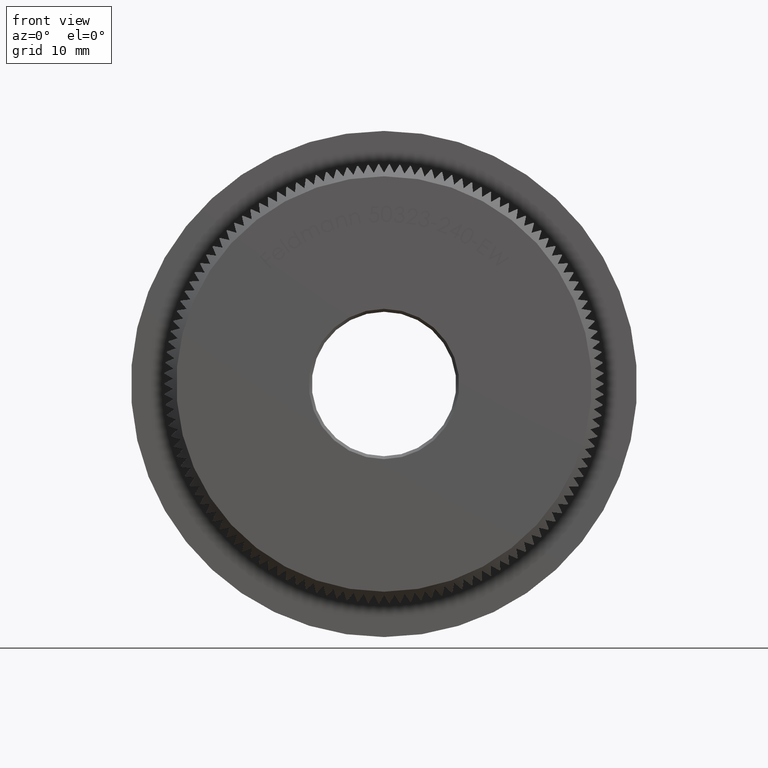
[diagram: clean part render]
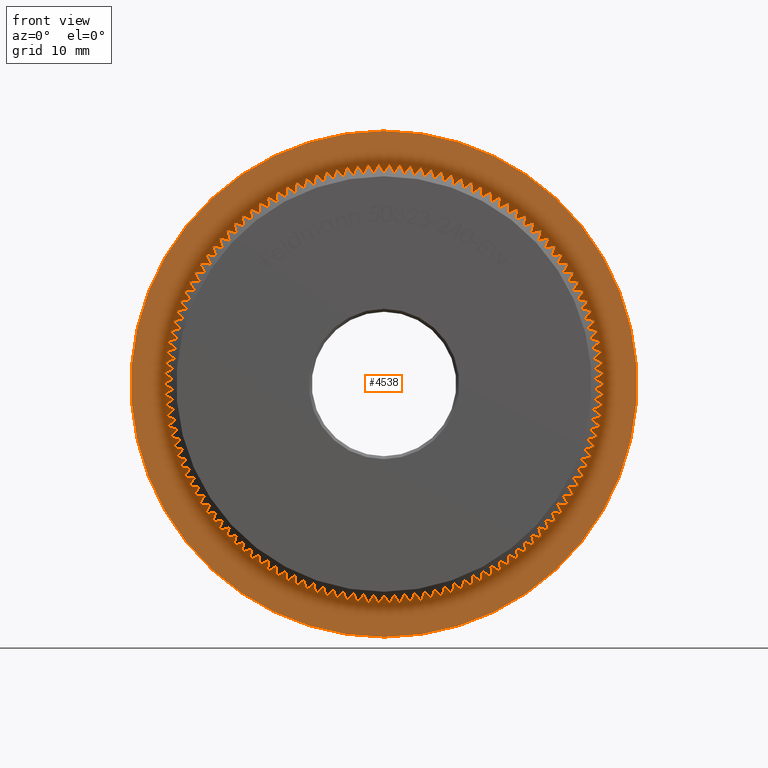
[diagram: same view with one face highlighted and labeled with its STEP entity id]
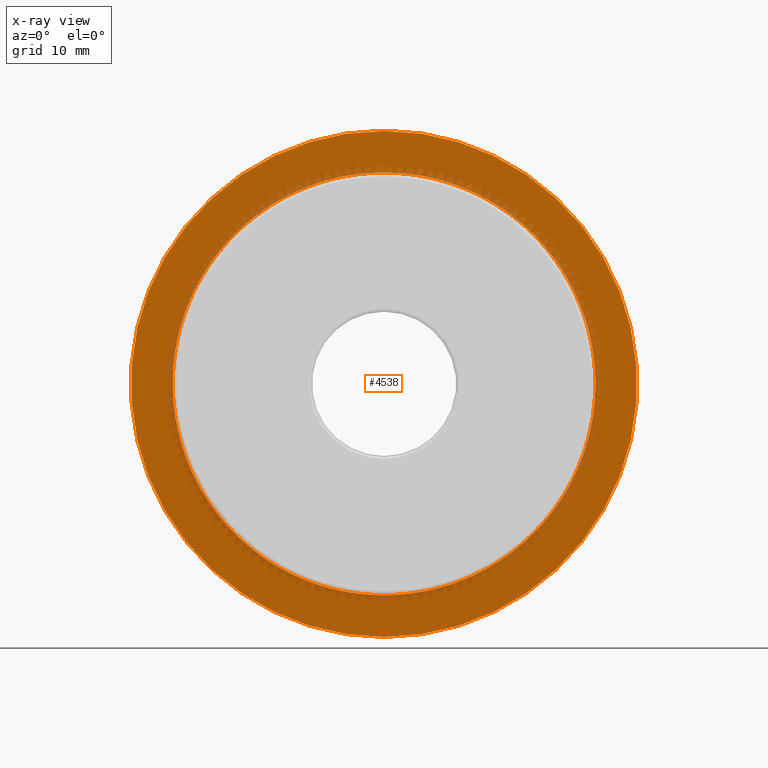
[diagram: x-ray of the same camera — body ghosted, the highlighted face saturated]
A machine part, front view. The second image highlights one B-rep face of the part: STEP entity #4538.
The next image is the same camera in x-ray: the body ghosted, the highlighted face saturated — about 10% of this face is hidden behind the body in this view.
In plain terms, the highlighted planar face has unit normal (0, -1, -0).
Its self-contained STEP definition (entity closure, byte-faithful):
#9 = ORIENTED_EDGE ( 'NONE', *, *, #1790, .F. ) ;
#20 = ORIENTED_EDGE ( 'NONE', *, *, #19466, .F. ) ;
#25 = CARTESIAN_POINT ( 'NONE',  ( 0.0000000000000000000, 8.000000000000001800, 0.0000000000000000000 ) ) ;
#43 = VERTEX_POINT ( 'NONE', #23828 ) ;
#63 = CIRCLE ( 'NONE', #851, 17.69999999999999900 ) ;
#64 = AXIS2_PLACEMENT_3D ( 'NONE', #26547, #7731, #16861 ) ;
#87 = DIRECTION ( 'NONE',  ( 0.0000000000000000000, 0.0000000000000000000, -1.000000000000000000 ) ) ;
#89 = DIRECTION ( 'NONE',  ( -0.0000000000000000000, -1.000000000000000000, -0.0000000000000000000 ) ) ;
#92 = ORIENTED_EDGE ( 'NONE', *, *, #15924, .F. ) ;
#119 = EDGE_CURVE ( 'NONE', #20254, #13040, #6478, .T. ) ;
#123 = VERTEX_POINT ( 'NONE', #24836 ) ;
#124 = VERTEX_POINT ( 'NONE', #24739 ) ;
#141 = CARTESIAN_POINT ( 'NONE',  ( 12.96115539878045200, 8.000000000000003600, 12.05398070052646300 ) ) ;
#143 = CIRCLE ( 'NONE', #25976, 17.69999999999999900 ) ;
#212 = ORIENTED_EDGE ( 'NONE', *, *, #21185, .F. ) ;
#257 = ORIENTED_EDGE ( 'NONE', *, *, #14483, .F. ) ;
#316 = DIRECTION ( 'NONE',  ( 0.0000000000000000000, 0.0000000000000000000, -1.000000000000000000 ) ) ;
#327 = DIRECTION ( 'NONE',  ( 0.0000000000000000000, 0.0000000000000000000, -1.000000000000000000 ) ) ;
#350 = CIRCLE ( 'NONE', #12611, 17.69999999999999900 ) ;
#362 = ORIENTED_EDGE ( 'NONE', *, *, #18352, .F. ) ;
#364 = DIRECTION ( 'NONE',  ( 0.0000000000000000000, 0.0000000000000000000, -1.000000000000000000 ) ) ;
#396 = DIRECTION ( 'NONE',  ( -0.0000000000000000000, -1.000000000000000000, -0.0000000000000000000 ) ) ;
#424 = DIRECTION ( 'NONE',  ( 0.0000000000000000000, 0.0000000000000000000, -1.000000000000000000 ) ) ;
#483 = CIRCLE ( 'NONE', #14293, 17.69999999999999900 ) ;
#498 = DIRECTION ( 'NONE',  ( 0.0000000000000000000, 0.0000000000000000000, -1.000000000000000000 ) ) ;
#564 = DIRECTION ( 'NONE',  ( -0.0000000000000000000, -1.000000000000000000, -0.0000000000000000000 ) ) ;
#586 = CARTESIAN_POINT ( 'NONE',  ( 0.0000000000000000000, 8.000000000000001800, 0.0000000000000000000 ) ) ;
#594 = EDGE_CURVE ( 'NONE', #9869, #6025, #19769, .T. ) ;
#617 = VERTEX_POINT ( 'NONE', #9331 ) ;
#631 = CARTESIAN_POINT ( 'NONE',  ( 0.0000000000000000000, 8.000000000000001800, 0.0000000000000000000 ) ) ;
#664 = DIRECTION ( 'NONE',  ( 0.0000000000000000000, 0.0000000000000000000, -1.000000000000000000 ) ) ;
#669 = AXIS2_PLACEMENT_3D ( 'NONE', #27244, #3758, #17845 ) ;
#716 = EDGE_CURVE ( 'NONE', #1011, #7086, #21995, .T. ) ;
#752 = AXIS2_PLACEMENT_3D ( 'NONE', #7244, #28235, #14055 ) ;
#765 = EDGE_CURVE ( 'NONE', #19103, #16768, #3103, .T. ) ;
#810 = CARTESIAN_POINT ( 'NONE',  ( 0.0000000000000000000, 8.000000000000001800, 0.0000000000000000000 ) ) ;
#841 = CARTESIAN_POINT ( 'NONE',  ( 0.0000000000000000000, 8.000000000000001800, 0.0000000000000000000 ) ) ;
#844 = CIRCLE ( 'NONE', #28810, 17.69999999999999900 ) ;
#851 = AXIS2_PLACEMENT_3D ( 'NONE', #19916, #10528, #3450 ) ;
#881 = CARTESIAN_POINT ( 'NONE',  ( 7.458799607573560300, 8.000000000000003600, 16.05167618705475300 ) ) ;
#886 = CARTESIAN_POINT ( 'NONE',  ( 5.061238507656932000, 8.000000000000007100, -16.96095117523220400 ) ) ;
#939 = CARTESIAN_POINT ( 'NONE',  ( -17.57094707153554900, 8.000000000000003600, -2.133499240519285000 ) ) ;
#964 = VERTEX_POINT ( 'NONE', #886 ) ;
#991 = AXIS2_PLACEMENT_3D ( 'NONE', #11006, #22879, #4136 ) ;
#1011 = VERTEX_POINT ( 'NONE', #13102 ) ;
#1029 = CARTESIAN_POINT ( 'NONE',  ( -14.06402493093340000, 8.000000000000003600, -10.74677638839125600 ) ) ;
#1042 = EDGE_CURVE ( 'NONE', #30440, #13222, #844, .T. ) ;
#1059 = VERTEX_POINT ( 'NONE', #29556 ) ;
#1090 = AXIS2_PLACEMENT_3D ( 'NONE', #16256, #2257, #30721 ) ;
#1126 = AXIS2_PLACEMENT_3D ( 'NONE', #23102, #25677, #13570 ) ;
#1157 = CARTESIAN_POINT ( 'NONE',  ( 0.0000000000000000000, 8.000000000000001800, 0.0000000000000000000 ) ) ;
#1212 = CIRCLE ( 'NONE', #991, 17.69999999999999900 ) ;
#1228 = ORIENTED_EDGE ( 'NONE', *, *, #5010, .F. ) ;
#1242 = DIRECTION ( 'NONE',  ( -0.0000000000000000000, -1.000000000000000000, -0.0000000000000000000 ) ) ;
#1248 = DIRECTION ( 'NONE',  ( 0.0000000000000000000, 0.0000000000000000000, -1.000000000000000000 ) ) ;
#1251 = ORIENTED_EDGE ( 'NONE', *, *, #26078, .F. ) ;
#1279 = VERTEX_POINT ( 'NONE', #17108 ) ;
#1295 = VERTEX_POINT ( 'NONE', #2905 ) ;
#1297 = VERTEX_POINT ( 'NONE', #7579 ) ;
#1311 = EDGE_LOOP ( 'NONE', ( #20134, #12274, #19369, #23553, #4525, #9324, #24588, #257, #2831, #26835, #24323, #15700, #14630, #20192, #20484, #6853, #11918, #24385, #25668, #28681, #29270, #10829, #18435, #24311, #6986, #14016, #28984, #25972, #7660, #21598, #92, #7390, #12971, #20, #8866, #23400, #27886, #24281, #4451, #23463, #26241, #14666, #19846, #2775, #13875, #5266, #1228, #21877, #12958, #24197, #4298, #11765, #29071, #23143, #10032, #25662, #21486, #23422, #13544, #24671, #25844, #25173, #19345, #9874, #3591, #15775, #1251, #25225, #362, #28400, #7202, #13266, #12054, #25464, #10940, #13376, #16414, #16344, #5800, #11047, #25859, #9036, #9089, #7504, #17691, #17435, #17458, #9, #25192, #14365, #28501, #1942, #28928, #18656, #2388, #16111, #24599, #30557, #14306, #22374, #19643, #9670, #29795, #24833, #3832, #15837, #26750, #212, #21850, #2879, #1817, #21797, #21731, #9109, #24426, #15676, #21774, #24407, #14427, #30167, #2916, #12419, #9258, #16997, #10126, #4232, #2387, #28372, #30523, #13832 ) ) ;
#1360 = VERTEX_POINT ( 'NONE', #5590 ) ;
#1385 = VERTEX_POINT ( 'NONE', #24518 ) ;
#1413 = CARTESIAN_POINT ( 'NONE',  ( 0.0000000000000000000, 8.000000000000001800, 0.0000000000000000000 ) ) ;
#1489 = EDGE_CURVE ( 'NONE', #1775, #14715, #13819, .T. ) ;
#1510 = CIRCLE ( 'NONE', #17288, 17.69999999999999900 ) ;
#1584 = AXIS2_PLACEMENT_3D ( 'NONE', #30538, #6952, #9354 ) ;
#1593 = CARTESIAN_POINT ( 'NONE',  ( 17.57094707153557800, 8.000000000000007100, -2.133499240519040300 ) ) ;
#1627 = ORIENTED_EDGE ( 'NONE', *, *, #5683, .T. ) ;
#1682 = EDGE_CURVE ( 'NONE', #2055, #19386, #24908, .T. ) ;
#1718 = DIRECTION ( 'NONE',  ( -0.0000000000000000000, -1.000000000000000000, -0.0000000000000000000 ) ) ;
#1743 = DIRECTION ( 'NONE',  ( -0.0000000000000000000, -1.000000000000000000, -0.0000000000000000000 ) ) ;
#1775 = VERTEX_POINT ( 'NONE', #23468 ) ;
#1790 = EDGE_CURVE ( 'NONE', #16696, #23329, #15660, .T. ) ;
#1817 = ORIENTED_EDGE ( 'NONE', *, *, #22132, .F. ) ;
#1865 = AXIS2_PLACEMENT_3D ( 'NONE', #6008, #12843, #15125 ) ;
#1889 = CARTESIAN_POINT ( 'NONE',  ( 0.0000000000000000000, 8.000000000000001800, 0.0000000000000000000 ) ) ;
#1905 = VERTEX_POINT ( 'NONE', #10245 ) ;
#1942 = ORIENTED_EDGE ( 'NONE', *, *, #25936, .F. ) ;
#2040 = AXIS2_PLACEMENT_3D ( 'NONE', #14618, #26695, #12545 ) ;
#2044 = EDGE_CURVE ( 'NONE', #22435, #6602, #23047, .T. ) ;
#2055 = VERTEX_POINT ( 'NONE', #3882 ) ;
#2088 = CARTESIAN_POINT ( 'NONE',  ( 9.699821380177779100, 8.000000000000003600, -14.80552144278093600 ) ) ;
#2132 = DIRECTION ( 'NONE',  ( 0.0000000000000000000, 0.0000000000000000000, -1.000000000000000000 ) ) ;
#2188 = DIRECTION ( 'NONE',  ( 0.0000000000000000000, 0.0000000000000000000, -1.000000000000000000 ) ) ;
#2257 = DIRECTION ( 'NONE',  ( -0.0000000000000000000, -1.000000000000000000, -0.0000000000000000000 ) ) ;
#2305 = DIRECTION ( 'NONE',  ( 0.0000000000000000000, 0.0000000000000000000, -1.000000000000000000 ) ) ;
#2340 = VERTEX_POINT ( 'NONE', #21969 ) ;
#2353 = DIRECTION ( 'NONE',  ( 0.0000000000000000000, 0.0000000000000000000, -1.000000000000000000 ) ) ;
#2366 = CARTESIAN_POINT ( 'NONE',  ( -15.86675679013392300, 8.000000000000007100, -7.844490357106640700 ) ) ;
#2387 = ORIENTED_EDGE ( 'NONE', *, *, #2634, .F. ) ;
#2388 = ORIENTED_EDGE ( 'NONE', *, *, #23997, .F. ) ;
#2461 = EDGE_CURVE ( 'NONE', #28962, #4765, #5256, .T. ) ;
#2465 = DIRECTION ( 'NONE',  ( -0.0000000000000000000, -1.000000000000000000, -0.0000000000000000000 ) ) ;
#2483 = VERTEX_POINT ( 'NONE', #20191 ) ;
#2487 = DIRECTION ( 'NONE',  ( -0.0000000000000000000, -1.000000000000000000, -0.0000000000000000000 ) ) ;
#2495 = AXIS2_PLACEMENT_3D ( 'NONE', #3904, #25317, #4200 ) ;
#2505 = EDGE_CURVE ( 'NONE', #964, #17238, #12304, .T. ) ;
#2529 = CARTESIAN_POINT ( 'NONE',  ( 14.56681442631759700, 8.000000000000003600, 10.05474601714163500 ) ) ;
#2538 = CIRCLE ( 'NONE', #17037, 17.69999999999999900 ) ;
#2541 = AXIS2_PLACEMENT_3D ( 'NONE', #19575, #29002, #12358 ) ;
#2573 = DIRECTION ( 'NONE',  ( -0.0000000000000000000, -1.000000000000000000, -0.0000000000000000000 ) ) ;
#2585 = DIRECTION ( 'NONE',  ( 0.0000000000000000000, 0.0000000000000000000, -1.000000000000000000 ) ) ;
#2588 = EDGE_CURVE ( 'NONE', #16541, #1905, #13772, .T. ) ;
#2591 = DIRECTION ( 'NONE',  ( -0.0000000000000000000, -1.000000000000000000, -0.0000000000000000000 ) ) ;
#2634 = EDGE_CURVE ( 'NONE', #21179, #16922, #17120, .T. ) ;
#2638 = VERTEX_POINT ( 'NONE', #16079 ) ;
#2679 = CIRCLE ( 'NONE', #20023, 17.69999999999999900 ) ;
#2693 = DIRECTION ( 'NONE',  ( 0.0000000000000000000, 0.0000000000000000000, -1.000000000000000000 ) ) ;
#2715 = EDGE_CURVE ( 'NONE', #15149, #43, #19336, .T. ) ;
#2775 = ORIENTED_EDGE ( 'NONE', *, *, #594, .F. ) ;
#2781 = DIRECTION ( 'NONE',  ( 0.0000000000000000000, 0.0000000000000000000, -1.000000000000000000 ) ) ;
#2791 = DIRECTION ( 'NONE',  ( -0.0000000000000000000, -1.000000000000000000, -0.0000000000000000000 ) ) ;
#2827 = CARTESIAN_POINT ( 'NONE',  ( 12.36365116490629600, 8.000000000000003600, -12.66610160517083500 ) ) ;
#2831 = ORIENTED_EDGE ( 'NONE', *, *, #18660, .F. ) ;
#2854 = AXIS2_PLACEMENT_3D ( 'NONE', #27195, #10476, #24415 ) ;
#2862 = AXIS2_PLACEMENT_3D ( 'NONE', #22248, #24733, #17614 ) ;
#2879 = ORIENTED_EDGE ( 'NONE', *, *, #4875, .F. ) ;
#2894 = DIRECTION ( 'NONE',  ( -0.0000000000000000000, -1.000000000000000000, -0.0000000000000000000 ) ) ;
#2905 = CARTESIAN_POINT ( 'NONE',  ( -11.73727105086209700, 8.000000000000003600, 13.24864024262847200 ) ) ;
#2916 = ORIENTED_EDGE ( 'NONE', *, *, #3303, .F. ) ;
#2925 = CIRCLE ( 'NONE', #15433, 17.69999999999999900 ) ;
#2950 = CARTESIAN_POINT ( 'NONE',  ( 0.0000000000000000000, 8.000000000000001800, 0.0000000000000000000 ) ) ;
#2958 = EDGE_CURVE ( 'NONE', #15565, #28286, #63, .T. ) ;
#3023 = VERTEX_POINT ( 'NONE', #21445 ) ;
#3101 = DIRECTION ( 'NONE',  ( -0.0000000000000000000, -1.000000000000000000, -0.0000000000000000000 ) ) ;
#3103 = CIRCLE ( 'NONE', #24434, 17.69999999999999900 ) ;
#3218 = CARTESIAN_POINT ( 'NONE',  ( 0.0000000000000000000, 8.000000000000001800, 0.0000000000000000000 ) ) ;
#3303 = EDGE_CURVE ( 'NONE', #12400, #10355, #24109, .T. ) ;
#3316 = CARTESIAN_POINT ( 'NONE',  ( 0.0000000000000000000, 8.000000000000001800, 0.0000000000000000000 ) ) ;
#3317 = DIRECTION ( 'NONE',  ( -0.0000000000000000000, -1.000000000000000000, -0.0000000000000000000 ) ) ;
#3326 = DIRECTION ( 'NONE',  ( 0.0000000000000000000, 0.0000000000000000000, -1.000000000000000000 ) ) ;
#3334 = DIRECTION ( 'NONE',  ( 0.0000000000000000000, 0.0000000000000000000, -1.000000000000000000 ) ) ;
#3352 = CARTESIAN_POINT ( 'NONE',  ( -17.44735163249023200, 7.999999999999992900, 2.979919631842530100 ) ) ;
#3355 = CIRCLE ( 'NONE', #2862, 17.69999999999999900 ) ;
#3387 = EDGE_CURVE ( 'NONE', #27231, #16508, #19310, .T. ) ;
#3399 = DIRECTION ( 'NONE',  ( 0.0000000000000000000, 0.0000000000000000000, -1.000000000000000000 ) ) ;
#3400 = EDGE_CURVE ( 'NONE', #7632, #15019, #3355, .T. ) ;
#3420 = CARTESIAN_POINT ( 'NONE',  ( 8.973189412500671500, 8.000000000000003600, -15.25686310377680000 ) ) ;
#3450 = DIRECTION ( 'NONE',  ( 0.0000000000000000000, 0.0000000000000000000, -1.000000000000000000 ) ) ;
#3482 = CARTESIAN_POINT ( 'NONE',  ( 11.08347799642827000, 8.000000000000003600, -13.80023606691894300 ) ) ;
#3591 = ORIENTED_EDGE ( 'NONE', *, *, #6679, .F. ) ;
#3598 = CIRCLE ( 'NONE', #7098, 17.69999999999999900 ) ;
#3624 = CIRCLE ( 'NONE', #11864, 17.69999999999999900 ) ;
#3663 = AXIS2_PLACEMENT_3D ( 'NONE', #23049, #27803, #25621 ) ;
#3704 = EDGE_CURVE ( 'NONE', #23329, #1775, #8922, .T. ) ;
#3705 = CARTESIAN_POINT ( 'NONE',  ( -7.458799607573780600, 8.000000000000007100, 16.05167618705464600 ) ) ;
#3713 = CIRCLE ( 'NONE', #6448, 17.69999999999999900 ) ;
#3758 = DIRECTION ( 'NONE',  ( -0.0000000000000000000, -1.000000000000000000, -0.0000000000000000000 ) ) ;
#3785 = CARTESIAN_POINT ( 'NONE',  ( 0.0000000000000000000, 8.000000000000001800, 0.0000000000000000000 ) ) ;
#3790 = DIRECTION ( 'NONE',  ( -0.0000000000000000000, -1.000000000000000000, -0.0000000000000000000 ) ) ;
#3791 = CARTESIAN_POINT ( 'NONE',  ( 0.0000000000000000000, 8.000000000000001800, 0.0000000000000000000 ) ) ;
#3832 = ORIENTED_EDGE ( 'NONE', *, *, #22215, .F. ) ;
#3867 = CARTESIAN_POINT ( 'NONE',  ( 0.0000000000000000000, 8.000000000000001800, 0.0000000000000000000 ) ) ;
#3882 = CARTESIAN_POINT ( 'NONE',  ( 16.83370033842427200, 8.000000000000003600, -5.469600800436407600 ) ) ;
#3904 = CARTESIAN_POINT ( 'NONE',  ( 0.0000000000000000000, 8.000000000000000000, 0.0000000000000000000 ) ) ;
#3910 = EDGE_CURVE ( 'NONE', #27142, #15337, #3713, .T. ) ;
#3960 = CARTESIAN_POINT ( 'NONE',  ( 0.0000000000000000000, 8.000000000000001800, 0.0000000000000000000 ) ) ;
#3964 = CARTESIAN_POINT ( 'NONE',  ( 10.40379896557689300, 8.000000000000003600, -14.31960080043648500 ) ) ;
#4036 = CIRCLE ( 'NONE', #8644, 17.69999999999999900 ) ;
#4064 = CIRCLE ( 'NONE', #15568, 17.69999999999999900 ) ;
#4069 = CIRCLE ( 'NONE', #20895, 17.69999999999999900 ) ;
#4136 = DIRECTION ( 'NONE',  ( 0.0000000000000000000, 0.0000000000000000000, -1.000000000000000000 ) ) ;
#4164 = DIRECTION ( 'NONE',  ( 0.0000000000000000000, 0.0000000000000000000, -1.000000000000000000 ) ) ;
#4193 = CARTESIAN_POINT ( 'NONE',  ( 0.0000000000000000000, 8.000000000000001800, 0.0000000000000000000 ) ) ;
#4200 = DIRECTION ( 'NONE',  ( 0.0000000000000000000, 0.0000000000000000000, -1.000000000000000000 ) ) ;
#4221 = DIRECTION ( 'NONE',  ( 0.0000000000000000000, 0.0000000000000000000, -1.000000000000000000 ) ) ;
#4232 = ORIENTED_EDGE ( 'NONE', *, *, #17690, .F. ) ;
#4288 = VERTEX_POINT ( 'NONE', #23693 ) ;
#4298 = ORIENTED_EDGE ( 'NONE', *, *, #22814, .F. ) ;
#4299 = CARTESIAN_POINT ( 'NONE',  ( 17.28300709527815500, 8.000000000000007100, -3.819380282789998300 ) ) ;
#4303 = CARTESIAN_POINT ( 'NONE',  ( 17.65350474953940800, 8.000000000000003600, -1.282095962863012600 ) ) ;
#4356 = CARTESIAN_POINT ( 'NONE',  ( 0.0000000000000000000, 8.000000000000000000, -21.19999999999999900 ) ) ;
#4399 = VERTEX_POINT ( 'NONE', #27921 ) ;
#4411 = CIRCLE ( 'NONE', #26526, 17.69999999999999900 ) ;
#4423 = VERTEX_POINT ( 'NONE', #30076 ) ;
#4436 = CARTESIAN_POINT ( 'NONE',  ( 0.0000000000000000000, 8.000000000000001800, 0.0000000000000000000 ) ) ;
#4437 = CARTESIAN_POINT ( 'NONE',  ( 0.0000000000000000000, 8.000000000000001800, 0.0000000000000000000 ) ) ;
#4438 = DIRECTION ( 'NONE',  ( 0.0000000000000000000, 0.0000000000000000000, -1.000000000000000000 ) ) ;
#4449 = DIRECTION ( 'NONE',  ( 0.0000000000000000000, 0.0000000000000000000, -1.000000000000000000 ) ) ;
#4451 = ORIENTED_EDGE ( 'NONE', *, *, #25986, .F. ) ;
#4469 = CARTESIAN_POINT ( 'NONE',  ( 0.0000000000000000000, 8.000000000000001800, 0.0000000000000000000 ) ) ;
#4525 = ORIENTED_EDGE ( 'NONE', *, *, #25651, .F. ) ;
#4538 = ADVANCED_FACE ( 'NONE', ( #17775, #23326 ), #16328, .T. ) ;
#4598 = CARTESIAN_POINT ( 'NONE',  ( 0.0000000000000000000, 8.000000000000001800, 0.0000000000000000000 ) ) ;
#4635 = DIRECTION ( 'NONE',  ( -0.0000000000000000000, -1.000000000000000000, -0.0000000000000000000 ) ) ;
#4693 = EDGE_CURVE ( 'NONE', #2638, #123, #11863, .T. ) ;
#4729 = AXIS2_PLACEMENT_3D ( 'NONE', #24106, #24205, #2781 ) ;
#4747 = CIRCLE ( 'NONE', #11220, 17.69999999999999900 ) ;
#4765 = VERTEX_POINT ( 'NONE', #3964 ) ;
#4769 = CARTESIAN_POINT ( 'NONE',  ( 0.0000000000000000000, 8.000000000000001800, 0.0000000000000000000 ) ) ;
#4856 = CARTESIAN_POINT ( 'NONE',  ( -14.06402493093347200, 8.000000000000003600, 10.74677638839116200 ) ) ;
#4875 = EDGE_CURVE ( 'NONE', #27462, #6831, #21079, .T. ) ;
#4879 = DIRECTION ( 'NONE',  ( 0.0000000000000000000, 0.0000000000000000000, -1.000000000000000000 ) ) ;
#4906 = DIRECTION ( 'NONE',  ( -0.0000000000000000000, -1.000000000000000000, -0.0000000000000000000 ) ) ;
#4922 = CIRCLE ( 'NONE', #28156, 17.69999999999999900 ) ;
#4960 = AXIS2_PLACEMENT_3D ( 'NONE', #23021, #15893, #4164 ) ;
#5001 = AXIS2_PLACEMENT_3D ( 'NONE', #16265, #25654, #4449 ) ;
#5008 = EDGE_CURVE ( 'NONE', #13924, #29560, #10016, .T. ) ;
#5010 = EDGE_CURVE ( 'NONE', #8898, #18791, #20709, .T. ) ;
#5015 = EDGE_CURVE ( 'NONE', #13040, #24154, #350, .T. ) ;
#5048 = AXIS2_PLACEMENT_3D ( 'NONE', #8527, #10615, #27130 ) ;
#5051 = EDGE_CURVE ( 'NONE', #15019, #16696, #9649, .T. ) ;
#5085 = VERTEX_POINT ( 'NONE', #28657 ) ;
#5105 = AXIS2_PLACEMENT_3D ( 'NONE', #16639, #14039, #25829 ) ;
#5126 = DIRECTION ( 'NONE',  ( -0.0000000000000000000, -1.000000000000000000, -0.0000000000000000000 ) ) ;
#5132 = VERTEX_POINT ( 'NONE', #4856 ) ;
#5189 = AXIS2_PLACEMENT_3D ( 'NONE', #29072, #2791, #7765 ) ;
#5191 = CIRCLE ( 'NONE', #12406, 17.69999999999999900 ) ;
#5197 = CIRCLE ( 'NONE', #2854, 17.69999999999999900 ) ;
#5222 = CIRCLE ( 'NONE', #5048, 17.69999999999999900 ) ;
#5232 = CARTESIAN_POINT ( 'NONE',  ( -16.83370033842419400, 8.000000000000007100, -5.469600800436639400 ) ) ;
#5256 = CIRCLE ( 'NONE', #8218, 17.69999999999999900 ) ;
#5266 = ORIENTED_EDGE ( 'NONE', *, *, #15435, .F. ) ;
#5312 = EDGE_CURVE ( 'NONE', #13222, #19222, #25493, .T. ) ;
#5345 = VERTEX_POINT ( 'NONE', #9997 ) ;
#5385 = DIRECTION ( 'NONE',  ( -0.0000000000000000000, -1.000000000000000000, -0.0000000000000000000 ) ) ;
#5390 = VERTEX_POINT ( 'NONE', #17302 ) ;
#5454 = AXIS2_PLACEMENT_3D ( 'NONE', #21438, #19279, #18988 ) ;
#5499 = CARTESIAN_POINT ( 'NONE',  ( 0.0000000000000000000, 8.000000000000001800, 0.0000000000000000000 ) ) ;
#5500 = CARTESIAN_POINT ( 'NONE',  ( -12.36365116490620700, 8.000000000000003600, 12.66610160517092300 ) ) ;
#5513 = CIRCLE ( 'NONE', #5894, 17.69999999999999900 ) ;
#5520 = CARTESIAN_POINT ( 'NONE',  ( 1.708296400187045300, 8.000000000000003600, -17.61736993450236700 ) ) ;
#5590 = CARTESIAN_POINT ( 'NONE',  ( 17.65350474953938000, 8.000000000000007100, 1.282095962863382100 ) ) ;
#5659 = DIRECTION ( 'NONE',  ( 0.0000000000000000000, 0.0000000000000000000, -1.000000000000000000 ) ) ;
#5683 = EDGE_CURVE ( 'NONE', #27134, #20447, #24393, .T. ) ;
#5721 = DIRECTION ( 'NONE',  ( 0.0000000000000000000, 0.0000000000000000000, -1.000000000000000000 ) ) ;
#5765 = CARTESIAN_POINT ( 'NONE',  ( -11.08347799642807600, 8.000000000000003600, -13.80023606691909800 ) ) ;
#5800 = ORIENTED_EDGE ( 'NONE', *, *, #28722, .F. ) ;
#5811 = CIRCLE ( 'NONE', #26121, 17.69999999999999900 ) ;
#5814 = VERTEX_POINT ( 'NONE', #26871 ) ;
#5817 = DIRECTION ( 'NONE',  ( -0.0000000000000000000, -1.000000000000000000, -0.0000000000000000000 ) ) ;
#5853 = EDGE_CURVE ( 'NONE', #617, #2055, #14407, .T. ) ;
#5875 = CIRCLE ( 'NONE', #2040, 17.69999999999999900 ) ;
#5879 = VERTEX_POINT ( 'NONE', #20977 ) ;
#5894 = AXIS2_PLACEMENT_3D ( 'NONE', #26390, #2894, #12132 ) ;
#5957 = CARTESIAN_POINT ( 'NONE',  ( -15.46923417748933000, 8.000000000000003600, -8.601906414394196800 ) ) ;
#5982 = DIRECTION ( 'NONE',  ( 0.0000000000000000000, 0.0000000000000000000, -1.000000000000000000 ) ) ;
#6008 = CARTESIAN_POINT ( 'NONE',  ( 0.0000000000000000000, 8.000000000000001800, 0.0000000000000000000 ) ) ;
#6025 = VERTEX_POINT ( 'NONE', #19123 ) ;
#6046 = AXIS2_PLACEMENT_3D ( 'NONE', #810, #5385, #17391 ) ;
#6092 = CARTESIAN_POINT ( 'NONE',  ( 0.0000000000000000000, 8.000000000000001800, 0.0000000000000000000 ) ) ;
#6108 = CARTESIAN_POINT ( 'NONE',  ( -2.557456177375223100, 7.999999999999998200, 17.51426327028360700 ) ) ;
#6142 = EDGE_CURVE ( 'NONE', #11263, #28962, #29172, .T. ) ;
#6166 = AXIS2_PLACEMENT_3D ( 'NONE', #28605, #28715, #14428 ) ;
#6336 = VERTEX_POINT ( 'NONE', #8230 ) ;
#6356 = AXIS2_PLACEMENT_3D ( 'NONE', #19540, #396, #498 ) ;
#6373 = EDGE_CURVE ( 'NONE', #14715, #25876, #27696, .T. ) ;
#6441 = VERTEX_POINT ( 'NONE', #11339 ) ;
#6448 = AXIS2_PLACEMENT_3D ( 'NONE', #20988, #4635, #30293 ) ;
#6478 = CIRCLE ( 'NONE', #7596, 17.69999999999999900 ) ;
#6513 = CARTESIAN_POINT ( 'NONE',  ( 0.0000000000000000000, 8.000000000000001800, 0.0000000000000000000 ) ) ;
#6539 = AXIS2_PLACEMENT_3D ( 'NONE', #13514, #9091, #25617 ) ;
#6541 = AXIS2_PLACEMENT_3D ( 'NONE', #25347, #29902, #8616 ) ;
#6602 = VERTEX_POINT ( 'NONE', #939 ) ;
#6610 = DIRECTION ( 'NONE',  ( -0.0000000000000000000, -1.000000000000000000, -0.0000000000000000000 ) ) ;
#6668 = CARTESIAN_POINT ( 'NONE',  ( 0.0000000000000000000, 8.000000000000001800, 0.0000000000000000000 ) ) ;
#6679 = EDGE_CURVE ( 'NONE', #2483, #20254, #12877, .T. ) ;
#6761 = CIRCLE ( 'NONE', #19283, 17.69999999999999900 ) ;
#6777 = AXIS2_PLACEMENT_3D ( 'NONE', #12912, #29468, #22434 ) ;
#6817 = CARTESIAN_POINT ( 'NONE',  ( 8.973189412500360600, 8.000000000000003600, 15.25686310377698400 ) ) ;
#6831 = VERTEX_POINT ( 'NONE', #16372 ) ;
#6849 = CIRCLE ( 'NONE', #15244, 17.69999999999999900 ) ;
#6853 = ORIENTED_EDGE ( 'NONE', *, *, #10034, .F. ) ;
#6937 = DIRECTION ( 'NONE',  ( 0.0000000000000000000, 0.0000000000000000000, -1.000000000000000000 ) ) ;
#6952 = DIRECTION ( 'NONE',  ( -0.0000000000000000000, -1.000000000000000000, -0.0000000000000000000 ) ) ;
#6961 = DIRECTION ( 'NONE',  ( 0.0000000000000000000, 0.0000000000000000000, -1.000000000000000000 ) ) ;
#6976 = EDGE_CURVE ( 'NONE', #28286, #19103, #3598, .T. ) ;
#6986 = ORIENTED_EDGE ( 'NONE', *, *, #18297, .F. ) ;
#7045 = DIRECTION ( 'NONE',  ( 0.0000000000000000000, 0.0000000000000000000, -1.000000000000000000 ) ) ;
#7086 = VERTEX_POINT ( 'NONE', #27703 ) ;
#7098 = AXIS2_PLACEMENT_3D ( 'NONE', #3791, #6610, #11385 ) ;
#7140 = DIRECTION ( 'NONE',  ( -0.0000000000000000000, -1.000000000000000000, -0.0000000000000000000 ) ) ;
#7171 = CARTESIAN_POINT ( 'NONE',  ( 0.0000000000000000000, 8.000000000000001800, 0.0000000000000000000 ) ) ;
#7202 = ORIENTED_EDGE ( 'NONE', *, *, #21412, .F. ) ;
#7238 = EDGE_CURVE ( 'NONE', #8888, #9869, #9932, .T. ) ;
#7244 = CARTESIAN_POINT ( 'NONE',  ( 0.0000000000000000000, 8.000000000000001800, 0.0000000000000000000 ) ) ;
#7252 = EDGE_CURVE ( 'NONE', #16768, #11974, #15829, .T. ) ;
#7264 = CARTESIAN_POINT ( 'NONE',  ( 0.0000000000000000000, 8.000000000000001800, 0.0000000000000000000 ) ) ;
#7323 = CARTESIAN_POINT ( 'NONE',  ( 0.0000000000000000000, 8.000000000000003600, -17.69999999999999900 ) ) ;
#7385 = DIRECTION ( 'NONE',  ( -0.0000000000000000000, -1.000000000000000000, -0.0000000000000000000 ) ) ;
#7390 = ORIENTED_EDGE ( 'NONE', *, *, #25999, .F. ) ;
#7448 = CARTESIAN_POINT ( 'NONE',  ( 0.0000000000000000000, 8.000000000000001800, 0.0000000000000000000 ) ) ;
#7474 = CARTESIAN_POINT ( 'NONE',  ( 0.0000000000000000000, 8.000000000000001800, 0.0000000000000000000 ) ) ;
#7504 = ORIENTED_EDGE ( 'NONE', *, *, #9146, .F. ) ;
#7516 = CARTESIAN_POINT ( 'NONE',  ( 12.36365116490603500, 8.000000000000003600, 12.66610160517109000 ) ) ;
#7530 = DIRECTION ( 'NONE',  ( 0.0000000000000000000, 0.0000000000000000000, -1.000000000000000000 ) ) ;
#7559 = CARTESIAN_POINT ( 'NONE',  ( -9.699821380177573000, 8.000000000000003600, -14.80552144278107100 ) ) ;
#7564 = EDGE_CURVE ( 'NONE', #29895, #5132, #21729, .T. ) ;
#7570 = CIRCLE ( 'NONE', #6541, 17.69999999999999900 ) ;
#7579 = CARTESIAN_POINT ( 'NONE',  ( 17.57094707153553500, 7.999999999999998200, 2.133499240519408900 ) ) ;
#7596 = AXIS2_PLACEMENT_3D ( 'NONE', #29389, #1242, #12742 ) ;
#7601 = EDGE_CURVE ( 'NONE', #18817, #2638, #8046, .T. ) ;
#7632 = VERTEX_POINT ( 'NONE', #26180 ) ;
#7660 = ORIENTED_EDGE ( 'NONE', *, *, #16037, .F. ) ;
#7669 = CIRCLE ( 'NONE', #29683, 17.69999999999999900 ) ;
#7682 = AXIS2_PLACEMENT_3D ( 'NONE', #3960, #20521, #10726 ) ;
#7694 = AXIS2_PLACEMENT_3D ( 'NONE', #9891, #14508, #327 ) ;
#7701 = CARTESIAN_POINT ( 'NONE',  ( 3.400642897160769200, 8.000000000000003600, -17.37025123266759200 ) ) ;
#7731 = DIRECTION ( 'NONE',  ( -0.0000000000000000000, -1.000000000000000000, -0.0000000000000000000 ) ) ;
#7765 = DIRECTION ( 'NONE',  ( 0.0000000000000000000, 0.0000000000000000000, -1.000000000000000000 ) ) ;
#7777 = CARTESIAN_POINT ( 'NONE',  ( 0.0000000000000000000, 8.000000000000001800, 0.0000000000000000000 ) ) ;
#7925 = DIRECTION ( 'NONE',  ( -0.0000000000000000000, -1.000000000000000000, -0.0000000000000000000 ) ) ;
#8000 = VERTEX_POINT ( 'NONE', #22858 ) ;
#8008 = CIRCLE ( 'NONE', #13647, 17.69999999999999900 ) ;
#8034 = DIRECTION ( 'NONE',  ( -0.0000000000000000000, -1.000000000000000000, -0.0000000000000000000 ) ) ;
#8046 = CIRCLE ( 'NONE', #22161, 17.69999999999999900 ) ;
#8089 = DIRECTION ( 'NONE',  ( 0.0000000000000000000, 0.0000000000000000000, -1.000000000000000000 ) ) ;
#8122 = CARTESIAN_POINT ( 'NONE',  ( 10.40379896557660000, 8.000000000000003600, 14.31960080043669600 ) ) ;
#8123 = DIRECTION ( 'NONE',  ( -0.0000000000000000000, -1.000000000000000000, -0.0000000000000000000 ) ) ;
#8171 = AXIS2_PLACEMENT_3D ( 'NONE', #28040, #30416, #6937 ) ;
#8173 = VERTEX_POINT ( 'NONE', #9539 ) ;
#8218 = AXIS2_PLACEMENT_3D ( 'NONE', #1157, #8420, #17532 ) ;
#8230 = CARTESIAN_POINT ( 'NONE',  ( -17.44735163249021100, 8.000000000000003600, -2.979919631842651700 ) ) ;
#8241 = CIRCLE ( 'NONE', #6777, 17.69999999999999900 ) ;
#8245 = CARTESIAN_POINT ( 'NONE',  ( -6.674578697883177400, 7.999999999999989300, -16.39329128655268900 ) ) ;
#8307 = EDGE_CURVE ( 'NONE', #27177, #11259, #9120, .T. ) ;
#8388 = DIRECTION ( 'NONE',  ( -0.0000000000000000000, -1.000000000000000000, -0.0000000000000000000 ) ) ;
#8420 = DIRECTION ( 'NONE',  ( -0.0000000000000000000, -1.000000000000000000, -0.0000000000000000000 ) ) ;
#8452 = AXIS2_PLACEMENT_3D ( 'NONE', #29568, #24607, #5982 ) ;
#8475 = DIRECTION ( 'NONE',  ( -0.0000000000000000000, -1.000000000000000000, -0.0000000000000000000 ) ) ;
#8527 = CARTESIAN_POINT ( 'NONE',  ( 0.0000000000000000000, 8.000000000000001800, 0.0000000000000000000 ) ) ;
#8616 = DIRECTION ( 'NONE',  ( 0.0000000000000000000, 0.0000000000000000000, -1.000000000000000000 ) ) ;
#8632 = CARTESIAN_POINT ( 'NONE',  ( -5.874769000374964600, 8.000000000000007100, 16.69661909466204700 ) ) ;
#8644 = AXIS2_PLACEMENT_3D ( 'NONE', #24818, #20166, #17608 ) ;
#8729 = VERTEX_POINT ( 'NONE', #2529 ) ;
#8732 = CIRCLE ( 'NONE', #752, 17.69999999999999900 ) ;
#8767 = CARTESIAN_POINT ( 'NONE',  ( -1.708296400186921400, 7.999999999999998200, 17.61736993450238100 ) ) ;
#8786 = CARTESIAN_POINT ( 'NONE',  ( 7.458799607573889800, 7.999999999999998200, -16.05167618705460000 ) ) ;
#8799 = CIRCLE ( 'NONE', #21178, 17.69999999999999900 ) ;
#8866 = ORIENTED_EDGE ( 'NONE', *, *, #8307, .F. ) ;
#8888 = VERTEX_POINT ( 'NONE', #27019 ) ;
#8898 = VERTEX_POINT ( 'NONE', #12659 ) ;
#8914 = AXIS2_PLACEMENT_3D ( 'NONE', #13734, #20568, #18196 ) ;
#8915 = DIRECTION ( 'NONE',  ( -0.0000000000000000000, -1.000000000000000000, -0.0000000000000000000 ) ) ;
#8922 = CIRCLE ( 'NONE', #8452, 17.69999999999999900 ) ;
#8943 = CARTESIAN_POINT ( 'NONE',  ( 0.0000000000000000000, 8.000000000000001800, 0.0000000000000000000 ) ) ;
#9036 = ORIENTED_EDGE ( 'NONE', *, *, #25024, .F. ) ;
#9050 = EDGE_CURVE ( 'NONE', #25053, #18828, #8732, .T. ) ;
#9087 = CIRCLE ( 'NONE', #8914, 17.69999999999999900 ) ;
#9089 = ORIENTED_EDGE ( 'NONE', *, *, #24930, .F. ) ;
#9091 = DIRECTION ( 'NONE',  ( -0.0000000000000000000, -1.000000000000000000, -0.0000000000000000000 ) ) ;
#9109 = ORIENTED_EDGE ( 'NONE', *, *, #22592, .F. ) ;
#9110 = CARTESIAN_POINT ( 'NONE',  ( -6.674578697883286600, 8.000000000000007100, 16.39329128655263500 ) ) ;
#9120 = CIRCLE ( 'NONE', #29103, 17.69999999999999900 ) ;
#9123 = CARTESIAN_POINT ( 'NONE',  ( 5.874769000375086300, 8.000000000000007100, -16.69661909466200800 ) ) ;
#9144 = EDGE_CURVE ( 'NONE', #29791, #13812, #6849, .T. ) ;
#9146 = EDGE_CURVE ( 'NONE', #25876, #5390, #12777, .T. ) ;
#9224 = DIRECTION ( 'NONE',  ( -0.0000000000000000000, -1.000000000000000000, -0.0000000000000000000 ) ) ;
#9234 = AXIS2_PLACEMENT_3D ( 'NONE', #13673, #30128, #18136 ) ;
#9236 = DIRECTION ( 'NONE',  ( -0.0000000000000000000, -1.000000000000000000, -0.0000000000000000000 ) ) ;
#9258 = ORIENTED_EDGE ( 'NONE', *, *, #21546, .F. ) ;
#9324 = ORIENTED_EDGE ( 'NONE', *, *, #5008, .F. ) ;
#9331 = CARTESIAN_POINT ( 'NONE',  ( 16.54978749553190200, 8.000000000000003600, -6.276506500652724100 ) ) ;
#9354 = DIRECTION ( 'NONE',  ( 0.0000000000000000000, 0.0000000000000000000, -1.000000000000000000 ) ) ;
#9391 = VERTEX_POINT ( 'NONE', #8245 ) ;
#9428 = DIRECTION ( 'NONE',  ( 0.0000000000000000000, 0.0000000000000000000, -1.000000000000000000 ) ) ;
#9462 = DIRECTION ( 'NONE',  ( -0.0000000000000000000, -1.000000000000000000, -0.0000000000000000000 ) ) ;
#9487 = CARTESIAN_POINT ( 'NONE',  ( 4.235887257889904900, 7.999999999999992900, -17.18567016844109200 ) ) ;
#9528 = EDGE_CURVE ( 'NONE', #24068, #964, #23495, .T. ) ;
#9539 = CARTESIAN_POINT ( 'NONE',  ( -8.973189412500460100, 8.000000000000003600, -15.25686310377692600 ) ) ;
#9563 = AXIS2_PLACEMENT_3D ( 'NONE', #15243, #24442, #22159 ) ;
#9579 = EDGE_CURVE ( 'NONE', #13812, #27177, #28316, .T. ) ;
#9597 = CARTESIAN_POINT ( 'NONE',  ( 17.07829729418090600, 7.999999999999998200, -4.649920594114822900 ) ) ;
#9623 = CARTESIAN_POINT ( 'NONE',  ( 0.0000000000000000000, 8.000000000000001800, 0.0000000000000000000 ) ) ;
#9649 = CIRCLE ( 'NONE', #14611, 17.69999999999999900 ) ;
#9670 = ORIENTED_EDGE ( 'NONE', *, *, #765, .F. ) ;
#9689 = DIRECTION ( 'NONE',  ( -0.0000000000000000000, -1.000000000000000000, -0.0000000000000000000 ) ) ;
#9694 = DIRECTION ( 'NONE',  ( 0.0000000000000000000, 0.0000000000000000000, -1.000000000000000000 ) ) ;
#9701 = CARTESIAN_POINT ( 'NONE',  ( 4.235887257889543500, 8.000000000000003600, 17.18567016844117700 ) ) ;
#9710 = AXIS2_PLACEMENT_3D ( 'NONE', #7777, #12629, #19560 ) ;
#9746 = AXIS2_PLACEMENT_3D ( 'NONE', #29059, #24700, #17473 ) ;
#9761 = DIRECTION ( 'NONE',  ( -0.0000000000000000000, -1.000000000000000000, -0.0000000000000000000 ) ) ;
#9869 = VERTEX_POINT ( 'NONE', #24759 ) ;
#9874 = ORIENTED_EDGE ( 'NONE', *, *, #119, .F. ) ;
#9883 = CIRCLE ( 'NONE', #30517, 17.69999999999999900 ) ;
#9891 = CARTESIAN_POINT ( 'NONE',  ( 0.0000000000000000000, 8.000000000000001800, 0.0000000000000000000 ) ) ;
#9905 = EDGE_CURVE ( 'NONE', #29195, #23982, #23835, .T. ) ;
#9932 = CIRCLE ( 'NONE', #22336, 17.69999999999999900 ) ;
#9940 = AXIS2_PLACEMENT_3D ( 'NONE', #24817, #8388, #3399 ) ;
#9997 = CARTESIAN_POINT ( 'NONE',  ( -11.08347799642817200, 8.000000000000003600, 13.80023606691902100 ) ) ;
#10016 = CIRCLE ( 'NONE', #26298, 17.69999999999999900 ) ;
#10032 = ORIENTED_EDGE ( 'NONE', *, *, #6142, .F. ) ;
#10034 = EDGE_CURVE ( 'NONE', #10219, #18299, #143, .T. ) ;
#10054 = DIRECTION ( 'NONE',  ( 0.0000000000000000000, 0.0000000000000000000, -1.000000000000000000 ) ) ;
#10060 = CARTESIAN_POINT ( 'NONE',  ( 0.0000000000000000000, 8.000000000000001800, 0.0000000000000000000 ) ) ;
#10126 = ORIENTED_EDGE ( 'NONE', *, *, #13518, .F. ) ;
#10161 = CARTESIAN_POINT ( 'NONE',  ( 0.0000000000000000000, 8.000000000000001800, 0.0000000000000000000 ) ) ;
#10219 = VERTEX_POINT ( 'NONE', #12808 ) ;
#10245 = CARTESIAN_POINT ( 'NONE',  ( -5.061238507656695700, 7.999999999999998200, -16.96095117523227500 ) ) ;
#10247 = EDGE_CURVE ( 'NONE', #6025, #10974, #18646, .T. ) ;
#10282 = EDGE_CURVE ( 'NONE', #27176, #8898, #23438, .T. ) ;
#10343 = CARTESIAN_POINT ( 'NONE',  ( 2.557456177374980200, 8.000000000000003600, 17.51426327028364200 ) ) ;
#10354 = DIRECTION ( 'NONE',  ( 0.0000000000000000000, 0.0000000000000000000, -1.000000000000000000 ) ) ;
#10355 = VERTEX_POINT ( 'NONE', #15816 ) ;
#10408 = EDGE_CURVE ( 'NONE', #9391, #16541, #13828, .T. ) ;
#10413 = VERTEX_POINT ( 'NONE', #4299 ) ;
#10445 = DIRECTION ( 'NONE',  ( 0.0000000000000000000, 0.0000000000000000000, -1.000000000000000000 ) ) ;
#10455 = EDGE_CURVE ( 'NONE', #20170, #25747, #30486, .T. ) ;
#10463 = CIRCLE ( 'NONE', #5001, 17.69999999999999900 ) ;
#10476 = DIRECTION ( 'NONE',  ( -0.0000000000000000000, -1.000000000000000000, -0.0000000000000000000 ) ) ;
#10492 = CARTESIAN_POINT ( 'NONE',  ( 0.0000000000000000000, 8.000000000000001800, 0.0000000000000000000 ) ) ;
#10508 = CARTESIAN_POINT ( 'NONE',  ( 15.46923417748926800, 7.999999999999992900, 8.601906414394314000 ) ) ;
#10528 = DIRECTION ( 'NONE',  ( -0.0000000000000000000, -1.000000000000000000, -0.0000000000000000000 ) ) ;
#10546 = VERTEX_POINT ( 'NONE', #8786 ) ;
#10560 = VERTEX_POINT ( 'NONE', #7323 ) ;
#10598 = CARTESIAN_POINT ( 'NONE',  ( 0.0000000000000000000, 8.000000000000001800, 0.0000000000000000000 ) ) ;
#10613 = CARTESIAN_POINT ( 'NONE',  ( 0.0000000000000000000, 8.000000000000001800, 0.0000000000000000000 ) ) ;
#10615 = DIRECTION ( 'NONE',  ( -0.0000000000000000000, -1.000000000000000000, -0.0000000000000000000 ) ) ;
#10645 = CIRCLE ( 'NONE', #18007, 17.69999999999999900 ) ;
#10671 = EDGE_CURVE ( 'NONE', #15794, #10546, #16066, .T. ) ;
#10726 = DIRECTION ( 'NONE',  ( 0.0000000000000000000, 0.0000000000000000000, -1.000000000000000000 ) ) ;
#10803 = DIRECTION ( 'NONE',  ( -0.0000000000000000000, -1.000000000000000000, -0.0000000000000000000 ) ) ;
#10815 = EDGE_CURVE ( 'NONE', #6602, #6336, #483, .T. ) ;
#10821 = DIRECTION ( 'NONE',  ( -0.0000000000000000000, -1.000000000000000000, -0.0000000000000000000 ) ) ;
#10829 = ORIENTED_EDGE ( 'NONE', *, *, #15612, .F. ) ;
#10877 = DIRECTION ( 'NONE',  ( -0.0000000000000000000, -1.000000000000000000, -0.0000000000000000000 ) ) ;
#10918 = DIRECTION ( 'NONE',  ( -0.0000000000000000000, -1.000000000000000000, -0.0000000000000000000 ) ) ;
#10940 = ORIENTED_EDGE ( 'NONE', *, *, #22901, .F. ) ;
#10946 = DIRECTION ( 'NONE',  ( 0.0000000000000000000, 0.0000000000000000000, -1.000000000000000000 ) ) ;
#10956 = DIRECTION ( 'NONE',  ( -0.0000000000000000000, -1.000000000000000000, -0.0000000000000000000 ) ) ;
#10974 = VERTEX_POINT ( 'NONE', #21557 ) ;
#11006 = CARTESIAN_POINT ( 'NONE',  ( 0.0000000000000000000, 8.000000000000001800, 0.0000000000000000000 ) ) ;
#11010 = EDGE_CURVE ( 'NONE', #19813, #4399, #14545, .T. ) ;
#11047 = ORIENTED_EDGE ( 'NONE', *, *, #14965, .F. ) ;
#11121 = DIRECTION ( 'NONE',  ( 0.0000000000000000000, 0.0000000000000000000, -1.000000000000000000 ) ) ;
#11132 = CARTESIAN_POINT ( 'NONE',  ( 0.0000000000000000000, 8.000000000000001800, 0.0000000000000000000 ) ) ;
#11169 = CARTESIAN_POINT ( 'NONE',  ( 13.52838825366161200, 8.000000000000003600, -11.41370716543010600 ) ) ;
#11178 = CARTESIAN_POINT ( 'NONE',  ( -8.225600145174608400, 8.000000000000010700, -15.67257165406186400 ) ) ;
#11189 = DIRECTION ( 'NONE',  ( -0.0000000000000000000, -1.000000000000000000, -0.0000000000000000000 ) ) ;
#11220 = AXIS2_PLACEMENT_3D ( 'NONE', #2950, #7925, #17058 ) ;
#11241 = EDGE_CURVE ( 'NONE', #5814, #1360, #30084, .T. ) ;
#11259 = VERTEX_POINT ( 'NONE', #24640 ) ;
#11263 = VERTEX_POINT ( 'NONE', #3420 ) ;
#11279 = EDGE_CURVE ( 'NONE', #8173, #13448, #2679, .T. ) ;
#11339 = CARTESIAN_POINT ( 'NONE',  ( -0.8551468176013543600, 7.999999999999998200, -17.67933041493218800 ) ) ;
#11385 = DIRECTION ( 'NONE',  ( 0.0000000000000000000, 0.0000000000000000000, -1.000000000000000000 ) ) ;
#11414 = CIRCLE ( 'NONE', #5105, 17.69999999999999900 ) ;
#11419 = DIRECTION ( 'NONE',  ( 0.0000000000000000000, 0.0000000000000000000, -1.000000000000000000 ) ) ;
#11613 = VERTEX_POINT ( 'NONE', #27347 ) ;
#11636 = AXIS2_PLACEMENT_3D ( 'NONE', #20310, #15677, #13588 ) ;
#11642 = EDGE_CURVE ( 'NONE', #10974, #617, #19722, .T. ) ;
#11654 = CARTESIAN_POINT ( 'NONE',  ( 0.0000000000000000000, 8.000000000000001800, 0.0000000000000000000 ) ) ;
#11753 = DIRECTION ( 'NONE',  ( -0.0000000000000000000, -1.000000000000000000, -0.0000000000000000000 ) ) ;
#11765 = ORIENTED_EDGE ( 'NONE', *, *, #3910, .F. ) ;
#11863 = CIRCLE ( 'NONE', #11636, 17.69999999999999900 ) ;
#11864 = AXIS2_PLACEMENT_3D ( 'NONE', #18659, #25465, #11121 ) ;
#11897 = AXIS2_PLACEMENT_3D ( 'NONE', #16659, #21296, #9428 ) ;
#11918 = ORIENTED_EDGE ( 'NONE', *, *, #12703, .F. ) ;
#11946 = DIRECTION ( 'NONE',  ( 0.0000000000000000000, 0.0000000000000000000, -1.000000000000000000 ) ) ;
#11974 = VERTEX_POINT ( 'NONE', #13657 ) ;
#11979 = CARTESIAN_POINT ( 'NONE',  ( -3.400642897160646600, 7.999999999999992900, 17.37025123266762000 ) ) ;
#12054 = ORIENTED_EDGE ( 'NONE', *, *, #2588, .F. ) ;
#12063 = EDGE_CURVE ( 'NONE', #24954, #12654, #10463, .T. ) ;
#12094 = AXIS2_PLACEMENT_3D ( 'NONE', #29051, #15082, #14880 ) ;
#12105 = CARTESIAN_POINT ( 'NONE',  ( 0.0000000000000000000, 8.000000000000001800, 0.0000000000000000000 ) ) ;
#12120 = CARTESIAN_POINT ( 'NONE',  ( -5.061238507656811200, 7.999999999999998200, 16.96095117523223900 ) ) ;
#12132 = DIRECTION ( 'NONE',  ( 0.0000000000000000000, 0.0000000000000000000, -1.000000000000000000 ) ) ;
#12143 = EDGE_CURVE ( 'NONE', #16608, #12515, #17466, .T. ) ;
#12189 = AXIS2_PLACEMENT_3D ( 'NONE', #25331, #11189, #23067 ) ;
#12194 = CIRCLE ( 'NONE', #27893, 17.69999999999999900 ) ;
#12243 = CARTESIAN_POINT ( 'NONE',  ( -17.65350474953939000, 8.000000000000003600, -1.282095962863259100 ) ) ;
#12256 = VERTEX_POINT ( 'NONE', #7559 ) ;
#12270 = CIRCLE ( 'NONE', #25050, 17.69999999999999900 ) ;
#12274 = ORIENTED_EDGE ( 'NONE', *, *, #27370, .F. ) ;
#12304 = CIRCLE ( 'NONE', #9234, 17.69999999999999900 ) ;
#12352 = AXIS2_PLACEMENT_3D ( 'NONE', #16817, #7385, #11946 ) ;
#12358 = DIRECTION ( 'NONE',  ( 0.0000000000000000000, 0.0000000000000000000, -1.000000000000000000 ) ) ;
#12400 = VERTEX_POINT ( 'NONE', #13531 ) ;
#12401 = AXIS2_PLACEMENT_3D ( 'NONE', #21028, #9462, #16381 ) ;
#12406 = AXIS2_PLACEMENT_3D ( 'NONE', #11132, #22902, #17941 ) ;
#12419 = ORIENTED_EDGE ( 'NONE', *, *, #21402, .F. ) ;
#12453 = AXIS2_PLACEMENT_3D ( 'NONE', #6513, #1743, #13220 ) ;
#12461 = DIRECTION ( 'NONE',  ( 0.0000000000000000000, 0.0000000000000000000, -1.000000000000000000 ) ) ;
#12485 = CARTESIAN_POINT ( 'NONE',  ( -4.235887257889782400, 8.000000000000007100, 17.18567016844111700 ) ) ;
#12515 = VERTEX_POINT ( 'NONE', #9110 ) ;
#12523 = CIRCLE ( 'NONE', #28497, 17.69999999999999900 ) ;
#12526 = VERTEX_POINT ( 'NONE', #6817 ) ;
#12530 = EDGE_CURVE ( 'NONE', #5879, #5345, #22262, .T. ) ;
#12545 = DIRECTION ( 'NONE',  ( 0.0000000000000000000, 0.0000000000000000000, -1.000000000000000000 ) ) ;
#12587 = DIRECTION ( 'NONE',  ( -0.0000000000000000000, -1.000000000000000000, -0.0000000000000000000 ) ) ;
#12611 = AXIS2_PLACEMENT_3D ( 'NONE', #25440, #30206, #4221 ) ;
#12629 = DIRECTION ( 'NONE',  ( -0.0000000000000000000, -1.000000000000000000, -0.0000000000000000000 ) ) ;
#12654 = VERTEX_POINT ( 'NONE', #7516 ) ;
#12659 = CARTESIAN_POINT ( 'NONE',  ( 14.06402493093354500, 8.000000000000003600, -10.74677638839106600 ) ) ;
#12668 = DIRECTION ( 'NONE',  ( -0.0000000000000000000, -1.000000000000000000, -0.0000000000000000000 ) ) ;
#12683 = CIRCLE ( 'NONE', #29956, 17.69999999999999900 ) ;
#12703 = EDGE_CURVE ( 'NONE', #12654, #10219, #6761, .T. ) ;
#12742 = DIRECTION ( 'NONE',  ( 0.0000000000000000000, 0.0000000000000000000, -1.000000000000000000 ) ) ;
#12753 = EDGE_CURVE ( 'NONE', #30605, #21179, #16387, .T. ) ;
#12754 = DIRECTION ( 'NONE',  ( -0.0000000000000000000, -1.000000000000000000, -0.0000000000000000000 ) ) ;
#12777 = CIRCLE ( 'NONE', #11897, 17.69999999999999900 ) ;
#12808 = CARTESIAN_POINT ( 'NONE',  ( 11.73727105086191700, 8.000000000000003600, 13.24864024262863000 ) ) ;
#12843 = DIRECTION ( 'NONE',  ( -0.0000000000000000000, -1.000000000000000000, -0.0000000000000000000 ) ) ;
#12877 = CIRCLE ( 'NONE', #23947, 17.69999999999999900 ) ;
#12912 = CARTESIAN_POINT ( 'NONE',  ( 0.0000000000000000000, 8.000000000000001800, 0.0000000000000000000 ) ) ;
#12928 = EDGE_CURVE ( 'NONE', #22940, #4288, #27417, .T. ) ;
#12958 = ORIENTED_EDGE ( 'NONE', *, *, #29074, .F. ) ;
#12971 = ORIENTED_EDGE ( 'NONE', *, *, #11241, .F. ) ;
#12999 = DIRECTION ( 'NONE',  ( 0.0000000000000000000, 0.0000000000000000000, -1.000000000000000000 ) ) ;
#13002 = AXIS2_PLACEMENT_3D ( 'NONE', #29761, #8475, #12999 ) ;
#13040 = VERTEX_POINT ( 'NONE', #16280 ) ;
#13088 = DIRECTION ( 'NONE',  ( -0.0000000000000000000, -1.000000000000000000, -0.0000000000000000000 ) ) ;
#13100 = CARTESIAN_POINT ( 'NONE',  ( -17.28300709527812600, 8.000000000000010700, 3.819380282790119100 ) ) ;
#13102 = CARTESIAN_POINT ( 'NONE',  ( -17.28300709527810100, 8.000000000000003600, -3.819380282790235900 ) ) ;
#13134 = EDGE_CURVE ( 'NONE', #18581, #5879, #19355, .T. ) ;
#13159 = CIRCLE ( 'NONE', #9940, 17.69999999999999900 ) ;
#13189 = CARTESIAN_POINT ( 'NONE',  ( 0.0000000000000000000, 8.000000000000001800, 0.0000000000000000000 ) ) ;
#13220 = DIRECTION ( 'NONE',  ( 0.0000000000000000000, 0.0000000000000000000, -1.000000000000000000 ) ) ;
#13222 = VERTEX_POINT ( 'NONE', #17289 ) ;
#13264 = DIRECTION ( 'NONE',  ( 0.0000000000000000000, 0.0000000000000000000, -1.000000000000000000 ) ) ;
#13266 = ORIENTED_EDGE ( 'NONE', *, *, #30290, .F. ) ;
#13303 = CIRCLE ( 'NONE', #15392, 17.69999999999999900 ) ;
#13334 = DIRECTION ( 'NONE',  ( -0.0000000000000000000, -1.000000000000000000, -0.0000000000000000000 ) ) ;
#13376 = ORIENTED_EDGE ( 'NONE', *, *, #15846, .F. ) ;
#13448 = VERTEX_POINT ( 'NONE', #11178 ) ;
#13456 = CARTESIAN_POINT ( 'NONE',  ( 15.03558245165080900, 8.000000000000003600, 9.339232320678730700 ) ) ;
#13514 = CARTESIAN_POINT ( 'NONE',  ( 0.0000000000000000000, 8.000000000000001800, 0.0000000000000000000 ) ) ;
#13518 = EDGE_CURVE ( 'NONE', #15023, #16608, #20427, .T. ) ;
#13531 = CARTESIAN_POINT ( 'NONE',  ( -8.225600145174720300, 8.000000000000007100, 15.67257165406180500 ) ) ;
#13541 = CARTESIAN_POINT ( 'NONE',  ( 0.0000000000000000000, 8.000000000000001800, 0.0000000000000000000 ) ) ;
#13544 = ORIENTED_EDGE ( 'NONE', *, *, #20545, .F. ) ;
#13570 = DIRECTION ( 'NONE',  ( 0.0000000000000000000, 0.0000000000000000000, -1.000000000000000000 ) ) ;
#13588 = DIRECTION ( 'NONE',  ( 0.0000000000000000000, 0.0000000000000000000, -1.000000000000000000 ) ) ;
#13597 = EDGE_CURVE ( 'NONE', #20447, #27134, #27829, .T. ) ;
#13641 = CIRCLE ( 'NONE', #27277, 17.69999999999999900 ) ;
#13647 = AXIS2_PLACEMENT_3D ( 'NONE', #6668, #23203, #28077 ) ;
#13657 = CARTESIAN_POINT ( 'NONE',  ( -17.65350474953939800, 8.000000000000007100, 1.282095962863135900 ) ) ;
#13673 = CARTESIAN_POINT ( 'NONE',  ( 0.0000000000000000000, 8.000000000000001800, 0.0000000000000000000 ) ) ;
#13734 = CARTESIAN_POINT ( 'NONE',  ( 0.0000000000000000000, 8.000000000000001800, 0.0000000000000000000 ) ) ;
#13740 = DIRECTION ( 'NONE',  ( 0.0000000000000000000, 0.0000000000000000000, -1.000000000000000000 ) ) ;
#13758 = DIRECTION ( 'NONE',  ( -0.0000000000000000000, -1.000000000000000000, -0.0000000000000000000 ) ) ;
#13772 = CIRCLE ( 'NONE', #30429, 17.69999999999999900 ) ;
#13812 = VERTEX_POINT ( 'NONE', #1593 ) ;
#13819 = CIRCLE ( 'NONE', #17334, 17.69999999999999900 ) ;
#13828 = CIRCLE ( 'NONE', #30327, 17.69999999999999900 ) ;
#13832 = ORIENTED_EDGE ( 'NONE', *, *, #5312, .F. ) ;
#13875 = ORIENTED_EDGE ( 'NONE', *, *, #7238, .F. ) ;
#13881 = DIRECTION ( 'NONE',  ( -0.0000000000000000000, -1.000000000000000000, -0.0000000000000000000 ) ) ;
#13919 = CIRCLE ( 'NONE', #12094, 17.69999999999999900 ) ;
#13924 = VERTEX_POINT ( 'NONE', #9701 ) ;
#13971 = VERTEX_POINT ( 'NONE', #2827 ) ;
#13978 = AXIS2_PLACEMENT_3D ( 'NONE', #9623, #16550, #25736 ) ;
#14016 = ORIENTED_EDGE ( 'NONE', *, *, #16821, .F. ) ;
#14033 = DIRECTION ( 'NONE',  ( 0.0000000000000000000, 0.0000000000000000000, -1.000000000000000000 ) ) ;
#14039 = DIRECTION ( 'NONE',  ( -0.0000000000000000000, -1.000000000000000000, -0.0000000000000000000 ) ) ;
#14055 = DIRECTION ( 'NONE',  ( 0.0000000000000000000, 0.0000000000000000000, -1.000000000000000000 ) ) ;
#14091 = DIRECTION ( 'NONE',  ( -0.0000000000000000000, -1.000000000000000000, -0.0000000000000000000 ) ) ;
#14118 = EDGE_CURVE ( 'NONE', #5085, #19813, #23370, .T. ) ;
#14179 = DIRECTION ( 'NONE',  ( -0.0000000000000000000, -1.000000000000000000, -0.0000000000000000000 ) ) ;
#14261 = DIRECTION ( 'NONE',  ( -0.0000000000000000000, -1.000000000000000000, -0.0000000000000000000 ) ) ;
#14293 = AXIS2_PLACEMENT_3D ( 'NONE', #27240, #8123, #22090 ) ;
#14306 = ORIENTED_EDGE ( 'NONE', *, *, #23863, .F. ) ;
#14319 = CIRCLE ( 'NONE', #28117, 17.69999999999999900 ) ;
#14365 = ORIENTED_EDGE ( 'NONE', *, *, #3400, .F. ) ;
#14368 = CARTESIAN_POINT ( 'NONE',  ( 14.56681442631780700, 8.000000000000003600, -10.05474601714133000 ) ) ;
#14369 = CIRCLE ( 'NONE', #26302, 17.69999999999999900 ) ;
#14407 = CIRCLE ( 'NONE', #13002, 17.69999999999999900 ) ;
#14427 = ORIENTED_EDGE ( 'NONE', *, *, #13134, .F. ) ;
#14428 = DIRECTION ( 'NONE',  ( 0.0000000000000000000, 0.0000000000000000000, -1.000000000000000000 ) ) ;
#14435 = AXIS2_PLACEMENT_3D ( 'NONE', #22104, #19822, #5659 ) ;
#14474 = AXIS2_PLACEMENT_3D ( 'NONE', #11654, #11753, #2305 ) ;
#14483 = EDGE_CURVE ( 'NONE', #27061, #15448, #29985, .T. ) ;
#14498 = DIRECTION ( 'NONE',  ( -0.0000000000000000000, -1.000000000000000000, -0.0000000000000000000 ) ) ;
#14508 = DIRECTION ( 'NONE',  ( -0.0000000000000000000, -1.000000000000000000, -0.0000000000000000000 ) ) ;
#14517 = AXIS2_PLACEMENT_3D ( 'NONE', #15762, #15352, #25049 ) ;
#14527 = AXIS2_PLACEMENT_3D ( 'NONE', #27511, #13334, #15942 ) ;
#14545 = CIRCLE ( 'NONE', #6166, 17.69999999999999900 ) ;
#14553 = CARTESIAN_POINT ( 'NONE',  ( 0.0000000000000000000, 8.000000000000001800, 0.0000000000000000000 ) ) ;
#14584 = DIRECTION ( 'NONE',  ( -0.0000000000000000000, -1.000000000000000000, -0.0000000000000000000 ) ) ;
#14611 = AXIS2_PLACEMENT_3D ( 'NONE', #4437, #9224, #30518 ) ;
#14615 = DIRECTION ( 'NONE',  ( -0.0000000000000000000, -1.000000000000000000, -0.0000000000000000000 ) ) ;
#14618 = CARTESIAN_POINT ( 'NONE',  ( 0.0000000000000000000, 8.000000000000001800, 0.0000000000000000000 ) ) ;
#14630 = ORIENTED_EDGE ( 'NONE', *, *, #25507, .F. ) ;
#14666 = ORIENTED_EDGE ( 'NONE', *, *, #11642, .F. ) ;
#14715 = VERTEX_POINT ( 'NONE', #1029 ) ;
#14737 = CARTESIAN_POINT ( 'NONE',  ( 0.0000000000000000000, 8.000000000000001800, 0.0000000000000000000 ) ) ;
#14822 = VERTEX_POINT ( 'NONE', #27727 ) ;
#14880 = DIRECTION ( 'NONE',  ( 0.0000000000000000000, 0.0000000000000000000, -1.000000000000000000 ) ) ;
#14965 = EDGE_CURVE ( 'NONE', #18828, #29613, #30356, .T. ) ;
#15015 = EDGE_CURVE ( 'NONE', #18299, #15149, #4064, .T. ) ;
#15019 = VERTEX_POINT ( 'NONE', #2366 ) ;
#15023 = VERTEX_POINT ( 'NONE', #12120 ) ;
#15027 = DIRECTION ( 'NONE',  ( -0.0000000000000000000, -1.000000000000000000, -0.0000000000000000000 ) ) ;
#15082 = DIRECTION ( 'NONE',  ( -0.0000000000000000000, -1.000000000000000000, -0.0000000000000000000 ) ) ;
#15125 = DIRECTION ( 'NONE',  ( 0.0000000000000000000, 0.0000000000000000000, -1.000000000000000000 ) ) ;
#15136 = DIRECTION ( 'NONE',  ( 0.0000000000000000000, 0.0000000000000000000, -1.000000000000000000 ) ) ;
#15149 = VERTEX_POINT ( 'NONE', #8122 ) ;
#15243 = CARTESIAN_POINT ( 'NONE',  ( 0.0000000000000000000, 8.000000000000001800, 0.0000000000000000000 ) ) ;
#15244 = AXIS2_PLACEMENT_3D ( 'NONE', #18729, #89, #28131 ) ;
#15277 = CIRCLE ( 'NONE', #26779, 17.69999999999999900 ) ;
#15300 = EDGE_CURVE ( 'NONE', #10560, #2483, #5191, .T. ) ;
#15332 = DIRECTION ( 'NONE',  ( -0.0000000000000000000, -1.000000000000000000, -0.0000000000000000000 ) ) ;
#15337 = VERTEX_POINT ( 'NONE', #29721 ) ;
#15352 = DIRECTION ( 'NONE',  ( -0.0000000000000000000, -1.000000000000000000, -0.0000000000000000000 ) ) ;
#15392 = AXIS2_PLACEMENT_3D ( 'NONE', #7448, #2465, #23994 ) ;
#15433 = AXIS2_PLACEMENT_3D ( 'NONE', #14737, #19493, #28911 ) ;
#15435 = EDGE_CURVE ( 'NONE', #18791, #8888, #24410, .T. ) ;
#15446 = DIRECTION ( 'NONE',  ( 0.0000000000000000000, 0.0000000000000000000, -1.000000000000000000 ) ) ;
#15448 = VERTEX_POINT ( 'NONE', #23110 ) ;
#15511 = AXIS2_PLACEMENT_3D ( 'NONE', #28355, #14179, #24104 ) ;
#15565 = VERTEX_POINT ( 'NONE', #26306 ) ;
#15568 = AXIS2_PLACEMENT_3D ( 'NONE', #26378, #9761, #7045 ) ;
#15600 = VERTEX_POINT ( 'NONE', #5500 ) ;
#15612 = EDGE_CURVE ( 'NONE', #25747, #8729, #5875, .T. ) ;
#15660 = CIRCLE ( 'NONE', #24834, 17.69999999999999900 ) ;
#15676 = ORIENTED_EDGE ( 'NONE', *, *, #20503, .F. ) ;
#15677 = DIRECTION ( 'NONE',  ( -0.0000000000000000000, -1.000000000000000000, -0.0000000000000000000 ) ) ;
#15700 = ORIENTED_EDGE ( 'NONE', *, *, #23348, .F. ) ;
#15708 = DIRECTION ( 'NONE',  ( 0.0000000000000000000, 0.0000000000000000000, -1.000000000000000000 ) ) ;
#15712 = EDGE_CURVE ( 'NONE', #22798, #20170, #4036, .T. ) ;
#15716 = VERTEX_POINT ( 'NONE', #3705 ) ;
#15762 = CARTESIAN_POINT ( 'NONE',  ( 0.0000000000000000000, 8.000000000000001800, 0.0000000000000000000 ) ) ;
#15775 = ORIENTED_EDGE ( 'NONE', *, *, #15300, .F. ) ;
#15794 = VERTEX_POINT ( 'NONE', #20476 ) ;
#15795 = AXIS2_PLACEMENT_3D ( 'NONE', #21538, #14615, #424 ) ;
#15816 = CARTESIAN_POINT ( 'NONE',  ( -8.973189412500568500, 8.000000000000003600, 15.25686310377686200 ) ) ;
#15829 = CIRCLE ( 'NONE', #2541, 17.69999999999999900 ) ;
#15837 = ORIENTED_EDGE ( 'NONE', *, *, #11010, .F. ) ;
#15846 = EDGE_CURVE ( 'NONE', #13448, #17715, #29221, .T. ) ;
#15893 = DIRECTION ( 'NONE',  ( -0.0000000000000000000, -1.000000000000000000, -0.0000000000000000000 ) ) ;
#15923 = AXIS2_PLACEMENT_3D ( 'NONE', #16040, #23156, #13740 ) ;
#15924 = EDGE_CURVE ( 'NONE', #1297, #29195, #19238, .T. ) ;
#15942 = DIRECTION ( 'NONE',  ( 0.0000000000000000000, 0.0000000000000000000, -1.000000000000000000 ) ) ;
#15968 = DIRECTION ( 'NONE',  ( -0.0000000000000000000, -1.000000000000000000, -0.0000000000000000000 ) ) ;
#15984 = AXIS2_PLACEMENT_3D ( 'NONE', #23432, #564, #30479 ) ;
#15995 = DIRECTION ( 'NONE',  ( 0.0000000000000000000, 0.0000000000000000000, -1.000000000000000000 ) ) ;
#16026 = AXIS2_PLACEMENT_3D ( 'NONE', #10613, #22478, #3326 ) ;
#16037 = EDGE_CURVE ( 'NONE', #23982, #14822, #13303, .T. ) ;
#16040 = CARTESIAN_POINT ( 'NONE',  ( 0.0000000000000000000, 8.000000000000001800, 0.0000000000000000000 ) ) ;
#16065 = VERTEX_POINT ( 'NONE', #26467 ) ;
#16066 = CIRCLE ( 'NONE', #16486, 17.69999999999999900 ) ;
#16075 = AXIS2_PLACEMENT_3D ( 'NONE', #4598, #4906, #9694 ) ;
#16079 = CARTESIAN_POINT ( 'NONE',  ( 1.708296400186676100, 8.000000000000007100, 17.61736993450240300 ) ) ;
#16111 = ORIENTED_EDGE ( 'NONE', *, *, #10815, .F. ) ;
#16256 = CARTESIAN_POINT ( 'NONE',  ( 0.0000000000000000000, 8.000000000000001800, 0.0000000000000000000 ) ) ;
#16265 = CARTESIAN_POINT ( 'NONE',  ( 0.0000000000000000000, 8.000000000000001800, 0.0000000000000000000 ) ) ;
#16275 = DIRECTION ( 'NONE',  ( 0.0000000000000000000, 0.0000000000000000000, -1.000000000000000000 ) ) ;
#16280 = CARTESIAN_POINT ( 'NONE',  ( 2.557456177375347000, 7.999999999999992900, -17.51426327028358900 ) ) ;
#16328 = PLANE ( 'NONE',  #3663 ) ;
#16344 = ORIENTED_EDGE ( 'NONE', *, *, #19632, .F. ) ;
#16372 = CARTESIAN_POINT ( 'NONE',  ( -15.46923417748939000, 7.999999999999998200, 8.601906414394093800 ) ) ;
#16381 = DIRECTION ( 'NONE',  ( 0.0000000000000000000, 0.0000000000000000000, -1.000000000000000000 ) ) ;
#16387 = CIRCLE ( 'NONE', #20855, 17.69999999999999900 ) ;
#16391 = CIRCLE ( 'NONE', #5189, 17.69999999999999900 ) ;
#16392 = AXIS2_PLACEMENT_3D ( 'NONE', #25536, #8915, #18631 ) ;
#16414 = ORIENTED_EDGE ( 'NONE', *, *, #11279, .F. ) ;
#16486 = AXIS2_PLACEMENT_3D ( 'NONE', #14553, #28837, #364 ) ;
#16508 = VERTEX_POINT ( 'NONE', #19792 ) ;
#16541 = VERTEX_POINT ( 'NONE', #29922 ) ;
#16550 = DIRECTION ( 'NONE',  ( -0.0000000000000000000, -1.000000000000000000, -0.0000000000000000000 ) ) ;
#16557 = DIRECTION ( 'NONE',  ( -0.0000000000000000000, -1.000000000000000000, -0.0000000000000000000 ) ) ;
#16578 = CARTESIAN_POINT ( 'NONE',  ( 0.0000000000000000000, 8.000000000000001800, 0.0000000000000000000 ) ) ;
#16608 = VERTEX_POINT ( 'NONE', #8632 ) ;
#16628 = AXIS2_PLACEMENT_3D ( 'NONE', #12105, #16557, #23665 ) ;
#16639 = CARTESIAN_POINT ( 'NONE',  ( 0.0000000000000000000, 8.000000000000001800, 0.0000000000000000000 ) ) ;
#16641 = CIRCLE ( 'NONE', #24932, 17.69999999999999900 ) ;
#16659 = CARTESIAN_POINT ( 'NONE',  ( 0.0000000000000000000, 8.000000000000001800, 0.0000000000000000000 ) ) ;
#16696 = VERTEX_POINT ( 'NONE', #5957 ) ;
#16768 = VERTEX_POINT ( 'NONE', #20741 ) ;
#16799 = DIRECTION ( 'NONE',  ( -0.0000000000000000000, -1.000000000000000000, -0.0000000000000000000 ) ) ;
#16817 = CARTESIAN_POINT ( 'NONE',  ( 0.0000000000000000000, 8.000000000000001800, 0.0000000000000000000 ) ) ;
#16821 = EDGE_CURVE ( 'NONE', #30129, #2340, #18471, .T. ) ;
#16861 = DIRECTION ( 'NONE',  ( 0.0000000000000000000, 0.0000000000000000000, -1.000000000000000000 ) ) ;
#16900 = AXIS2_PLACEMENT_3D ( 'NONE', #23622, #9689, #28392 ) ;
#16910 = CARTESIAN_POINT ( 'NONE',  ( 11.08347799642798700, 7.999999999999992900, 13.80023606691917400 ) ) ;
#16922 = VERTEX_POINT ( 'NONE', #12485 ) ;
#16962 = DIRECTION ( 'NONE',  ( -0.0000000000000000000, -1.000000000000000000, -0.0000000000000000000 ) ) ;
#16997 = ORIENTED_EDGE ( 'NONE', *, *, #12143, .F. ) ;
#17024 = EDGE_CURVE ( 'NONE', #3023, #1279, #12523, .T. ) ;
#17037 = AXIS2_PLACEMENT_3D ( 'NONE', #25355, #18235, #20604 ) ;
#17058 = DIRECTION ( 'NONE',  ( 0.0000000000000000000, 0.0000000000000000000, -1.000000000000000000 ) ) ;
#17108 = CARTESIAN_POINT ( 'NONE',  ( -2.557456177375102300, 7.999999999999998200, -17.51426327028362500 ) ) ;
#17117 = AXIS2_PLACEMENT_3D ( 'NONE', #23360, #27715, #24248 ) ;
#17120 = CIRCLE ( 'NONE', #12401, 17.69999999999999900 ) ;
#17137 = CARTESIAN_POINT ( 'NONE',  ( 0.0000000000000000000, 8.000000000000001800, 0.0000000000000000000 ) ) ;
#17234 = DIRECTION ( 'NONE',  ( 0.0000000000000000000, 0.0000000000000000000, -1.000000000000000000 ) ) ;
#17238 = VERTEX_POINT ( 'NONE', #9123 ) ;
#17288 = AXIS2_PLACEMENT_3D ( 'NONE', #16578, #9236, #11419 ) ;
#17289 = CARTESIAN_POINT ( 'NONE',  ( -0.8551468176014772600, 7.999999999999998200, 17.67933041493218100 ) ) ;
#17302 = CARTESIAN_POINT ( 'NONE',  ( -12.96115539878053000, 8.000000000000003600, -12.05398070052637700 ) ) ;
#17334 = AXIS2_PLACEMENT_3D ( 'NONE', #17698, #22550, #24723 ) ;
#17356 = CARTESIAN_POINT ( 'NONE',  ( 0.0000000000000000000, 8.000000000000001800, 0.0000000000000000000 ) ) ;
#17391 = DIRECTION ( 'NONE',  ( 0.0000000000000000000, 0.0000000000000000000, -1.000000000000000000 ) ) ;
#17425 = CARTESIAN_POINT ( 'NONE',  ( 0.0000000000000000000, 8.000000000000001800, 0.0000000000000000000 ) ) ;
#17435 = ORIENTED_EDGE ( 'NONE', *, *, #1489, .F. ) ;
#17458 = ORIENTED_EDGE ( 'NONE', *, *, #3704, .F. ) ;
#17466 = CIRCLE ( 'NONE', #15511, 17.69999999999999900 ) ;
#17473 = DIRECTION ( 'NONE',  ( 0.0000000000000000000, 0.0000000000000000000, -1.000000000000000000 ) ) ;
#17532 = DIRECTION ( 'NONE',  ( 0.0000000000000000000, 0.0000000000000000000, -1.000000000000000000 ) ) ;
#17593 = EDGE_CURVE ( 'NONE', #7086, #28637, #26927, .T. ) ;
#17608 = DIRECTION ( 'NONE',  ( 0.0000000000000000000, 0.0000000000000000000, -1.000000000000000000 ) ) ;
#17614 = DIRECTION ( 'NONE',  ( 0.0000000000000000000, 0.0000000000000000000, -1.000000000000000000 ) ) ;
#17622 = CARTESIAN_POINT ( 'NONE',  ( 0.0000000000000000000, 8.000000000000001800, 0.0000000000000000000 ) ) ;
#17657 = CIRCLE ( 'NONE', #9710, 17.69999999999999900 ) ;
#17690 = EDGE_CURVE ( 'NONE', #16922, #15023, #11414, .T. ) ;
#17691 = ORIENTED_EDGE ( 'NONE', *, *, #6373, .F. ) ;
#17698 = CARTESIAN_POINT ( 'NONE',  ( 0.0000000000000000000, 8.000000000000001800, 0.0000000000000000000 ) ) ;
#17715 = VERTEX_POINT ( 'NONE', #26239 ) ;
#17775 = FACE_OUTER_BOUND ( 'NONE', #18980, .T. ) ;
#17845 = DIRECTION ( 'NONE',  ( 0.0000000000000000000, 0.0000000000000000000, -1.000000000000000000 ) ) ;
#17914 = CIRCLE ( 'NONE', #16900, 17.69999999999999900 ) ;
#17941 = DIRECTION ( 'NONE',  ( 0.0000000000000000000, 0.0000000000000000000, -1.000000000000000000 ) ) ;
#18007 = AXIS2_PLACEMENT_3D ( 'NONE', #26232, #30483, #14033 ) ;
#18136 = DIRECTION ( 'NONE',  ( 0.0000000000000000000, 0.0000000000000000000, -1.000000000000000000 ) ) ;
#18148 = CARTESIAN_POINT ( 'NONE',  ( 0.0000000000000000000, 8.000000000000001800, 0.0000000000000000000 ) ) ;
#18196 = DIRECTION ( 'NONE',  ( 0.0000000000000000000, 0.0000000000000000000, -1.000000000000000000 ) ) ;
#18235 = DIRECTION ( 'NONE',  ( -0.0000000000000000000, -1.000000000000000000, -0.0000000000000000000 ) ) ;
#18297 = EDGE_CURVE ( 'NONE', #2340, #22798, #23200, .T. ) ;
#18299 = VERTEX_POINT ( 'NONE', #16910 ) ;
#18351 = CARTESIAN_POINT ( 'NONE',  ( -13.52838825366145900, 8.000000000000003600, -11.41370716543028900 ) ) ;
#18352 = EDGE_CURVE ( 'NONE', #1279, #4423, #17657, .T. ) ;
#18388 = AXIS2_PLACEMENT_3D ( 'NONE', #26545, #16962, #7530 ) ;
#18435 = ORIENTED_EDGE ( 'NONE', *, *, #10455, .F. ) ;
#18471 = CIRCLE ( 'NONE', #15984, 17.69999999999999900 ) ;
#18474 = AXIS2_PLACEMENT_3D ( 'NONE', #3867, #20423, #15995 ) ;
#18574 = EDGE_CURVE ( 'NONE', #14822, #8000, #18803, .T. ) ;
#18581 = VERTEX_POINT ( 'NONE', #25025 ) ;
#18631 = DIRECTION ( 'NONE',  ( 0.0000000000000000000, 0.0000000000000000000, -1.000000000000000000 ) ) ;
#18637 = DIRECTION ( 'NONE',  ( -0.0000000000000000000, -1.000000000000000000, -0.0000000000000000000 ) ) ;
#18646 = CIRCLE ( 'NONE', #9746, 17.69999999999999900 ) ;
#18656 = ORIENTED_EDGE ( 'NONE', *, *, #716, .F. ) ;
#18659 = CARTESIAN_POINT ( 'NONE',  ( 0.0000000000000000000, 8.000000000000001800, 0.0000000000000000000 ) ) ;
#18660 = EDGE_CURVE ( 'NONE', #4288, #27061, #21332, .T. ) ;
#18701 = AXIS2_PLACEMENT_3D ( 'NONE', #23973, #29036, #664 ) ;
#18729 = CARTESIAN_POINT ( 'NONE',  ( 0.0000000000000000000, 8.000000000000001800, 0.0000000000000000000 ) ) ;
#18773 = CIRCLE ( 'NONE', #16628, 17.69999999999999900 ) ;
#18775 = DIRECTION ( 'NONE',  ( -0.0000000000000000000, -1.000000000000000000, -0.0000000000000000000 ) ) ;
#18791 = VERTEX_POINT ( 'NONE', #14368 ) ;
#18803 = CIRCLE ( 'NONE', #12453, 17.69999999999999900 ) ;
#18817 = VERTEX_POINT ( 'NONE', #10343 ) ;
#18828 = VERTEX_POINT ( 'NONE', #5765 ) ;
#18975 = EDGE_CURVE ( 'NONE', #10413, #29791, #18773, .T. ) ;
#18980 = EDGE_LOOP ( 'NONE', ( #26492, #1627 ) ) ;
#18988 = DIRECTION ( 'NONE',  ( 0.0000000000000000000, 0.0000000000000000000, -1.000000000000000000 ) ) ;
#19037 = VERTEX_POINT ( 'NONE', #24279 ) ;
#19103 = VERTEX_POINT ( 'NONE', #3352 ) ;
#19123 = CARTESIAN_POINT ( 'NONE',  ( 15.86675679013403000, 8.000000000000003600, -7.844490357106424800 ) ) ;
#19206 = AXIS2_PLACEMENT_3D ( 'NONE', #25948, #7140, #2353 ) ;
#19222 = VERTEX_POINT ( 'NONE', #8767 ) ;
#19238 = CIRCLE ( 'NONE', #1090, 17.69999999999999900 ) ;
#19279 = DIRECTION ( 'NONE',  ( -0.0000000000000000000, -1.000000000000000000, -0.0000000000000000000 ) ) ;
#19283 = AXIS2_PLACEMENT_3D ( 'NONE', #841, #12754, #17234 ) ;
#19310 = CIRCLE ( 'NONE', #24088, 17.69999999999999900 ) ;
#19336 = CIRCLE ( 'NONE', #13978, 17.69999999999999900 ) ;
#19345 = ORIENTED_EDGE ( 'NONE', *, *, #5015, .F. ) ;
#19355 = CIRCLE ( 'NONE', #27181, 17.69999999999999900 ) ;
#19369 = ORIENTED_EDGE ( 'NONE', *, *, #4693, .F. ) ;
#19386 = VERTEX_POINT ( 'NONE', #9597 ) ;
#19432 = EDGE_CURVE ( 'NONE', #16508, #24954, #2925, .T. ) ;
#19466 = EDGE_CURVE ( 'NONE', #11259, #5814, #16641, .T. ) ;
#19493 = DIRECTION ( 'NONE',  ( -0.0000000000000000000, -1.000000000000000000, -0.0000000000000000000 ) ) ;
#19494 = DIRECTION ( 'NONE',  ( 0.0000000000000000000, 0.0000000000000000000, -1.000000000000000000 ) ) ;
#19540 = CARTESIAN_POINT ( 'NONE',  ( 0.0000000000000000000, 8.000000000000001800, 0.0000000000000000000 ) ) ;
#19560 = DIRECTION ( 'NONE',  ( 0.0000000000000000000, 0.0000000000000000000, -1.000000000000000000 ) ) ;
#19575 = CARTESIAN_POINT ( 'NONE',  ( 0.0000000000000000000, 8.000000000000001800, 0.0000000000000000000 ) ) ;
#19606 = CARTESIAN_POINT ( 'NONE',  ( -12.36365116490611800, 8.000000000000003600, -12.66610160517101000 ) ) ;
#19632 = EDGE_CURVE ( 'NONE', #12256, #8173, #2538, .T. ) ;
#19643 = ORIENTED_EDGE ( 'NONE', *, *, #7252, .F. ) ;
#19689 = DIRECTION ( 'NONE',  ( -0.0000000000000000000, -1.000000000000000000, -0.0000000000000000000 ) ) ;
#19698 = CIRCLE ( 'NONE', #18701, 17.69999999999999900 ) ;
#19702 = CARTESIAN_POINT ( 'NONE',  ( 0.0000000000000000000, 8.000000000000001800, 0.0000000000000000000 ) ) ;
#19722 = CIRCLE ( 'NONE', #18474, 17.69999999999999900 ) ;
#19753 = EDGE_CURVE ( 'NONE', #10355, #18581, #4411, .T. ) ;
#19769 = CIRCLE ( 'NONE', #14527, 17.69999999999999900 ) ;
#19792 = CARTESIAN_POINT ( 'NONE',  ( 13.52838825366138500, 8.000000000000003600, 11.41370716543037600 ) ) ;
#19813 = VERTEX_POINT ( 'NONE', #26483 ) ;
#19814 = EDGE_CURVE ( 'NONE', #19222, #30605, #5513, .T. ) ;
#19822 = DIRECTION ( 'NONE',  ( -0.0000000000000000000, -1.000000000000000000, -0.0000000000000000000 ) ) ;
#19846 = ORIENTED_EDGE ( 'NONE', *, *, #10247, .F. ) ;
#19888 = CARTESIAN_POINT ( 'NONE',  ( -11.73727105086200400, 8.000000000000003600, -13.24864024262855200 ) ) ;
#19916 = CARTESIAN_POINT ( 'NONE',  ( 0.0000000000000000000, 8.000000000000001800, 0.0000000000000000000 ) ) ;
#20023 = AXIS2_PLACEMENT_3D ( 'NONE', #3316, #5817, #22363 ) ;
#20072 = CARTESIAN_POINT ( 'NONE',  ( -17.69483184921941900, 7.999999999999992900, -0.4276982906796046300 ) ) ;
#20089 = CARTESIAN_POINT ( 'NONE',  ( 0.0000000000000000000, 8.000000000000001800, 0.0000000000000000000 ) ) ;
#20134 = ORIENTED_EDGE ( 'NONE', *, *, #1042, .F. ) ;
#20166 = DIRECTION ( 'NONE',  ( -0.0000000000000000000, -1.000000000000000000, -0.0000000000000000000 ) ) ;
#20170 = VERTEX_POINT ( 'NONE', #10508 ) ;
#20191 = CARTESIAN_POINT ( 'NONE',  ( 0.8551468176016011600, 7.999999999999989300, -17.67933041493217800 ) ) ;
#20192 = ORIENTED_EDGE ( 'NONE', *, *, #2715, .F. ) ;
#20226 = DIRECTION ( 'NONE',  ( 0.0000000000000000000, 0.0000000000000000000, -1.000000000000000000 ) ) ;
#20254 = VERTEX_POINT ( 'NONE', #5520 ) ;
#20301 = DIRECTION ( 'NONE',  ( 0.0000000000000000000, 0.0000000000000000000, -1.000000000000000000 ) ) ;
#20310 = CARTESIAN_POINT ( 'NONE',  ( 0.0000000000000000000, 8.000000000000001800, 0.0000000000000000000 ) ) ;
#20328 = CARTESIAN_POINT ( 'NONE',  ( 0.0000000000000000000, 8.000000000000001800, 0.0000000000000000000 ) ) ;
#20347 = DIRECTION ( 'NONE',  ( 0.0000000000000000000, 0.0000000000000000000, -1.000000000000000000 ) ) ;
#20404 = CIRCLE ( 'NONE', #12352, 17.69999999999999900 ) ;
#20423 = DIRECTION ( 'NONE',  ( -0.0000000000000000000, -1.000000000000000000, -0.0000000000000000000 ) ) ;
#20427 = CIRCLE ( 'NONE', #15923, 17.69999999999999900 ) ;
#20443 = EDGE_CURVE ( 'NONE', #13971, #16065, #3624, .T. ) ;
#20447 = VERTEX_POINT ( 'NONE', #4356 ) ;
#20476 = CARTESIAN_POINT ( 'NONE',  ( 6.674578697883397600, 7.999999999999998200, -16.39329128655259600 ) ) ;
#20484 = ORIENTED_EDGE ( 'NONE', *, *, #15015, .F. ) ;
#20503 = EDGE_CURVE ( 'NONE', #1295, #15600, #13641, .T. ) ;
#20521 = DIRECTION ( 'NONE',  ( -0.0000000000000000000, -1.000000000000000000, -0.0000000000000000000 ) ) ;
#20543 = DIRECTION ( 'NONE',  ( -0.0000000000000000000, -1.000000000000000000, -0.0000000000000000000 ) ) ;
#20545 = EDGE_CURVE ( 'NONE', #17238, #15794, #12194, .T. ) ;
#20568 = DIRECTION ( 'NONE',  ( -0.0000000000000000000, -1.000000000000000000, -0.0000000000000000000 ) ) ;
#20604 = DIRECTION ( 'NONE',  ( 0.0000000000000000000, 0.0000000000000000000, -1.000000000000000000 ) ) ;
#20687 = DIRECTION ( 'NONE',  ( 0.0000000000000000000, 0.0000000000000000000, -1.000000000000000000 ) ) ;
#20709 = CIRCLE ( 'NONE', #16392, 17.69999999999999900 ) ;
#20741 = CARTESIAN_POINT ( 'NONE',  ( -17.57094707153556400, 8.000000000000003600, 2.133499240519162800 ) ) ;
#20855 = AXIS2_PLACEMENT_3D ( 'NONE', #17425, #19689, #26921 ) ;
#20871 = EDGE_CURVE ( 'NONE', #15448, #13924, #14369, .T. ) ;
#20890 = CARTESIAN_POINT ( 'NONE',  ( 15.86675679013386500, 8.000000000000007100, 7.844490357106757900 ) ) ;
#20895 = AXIS2_PLACEMENT_3D ( 'NONE', #28887, #2591, #2693 ) ;
#20943 = CARTESIAN_POINT ( 'NONE',  ( 0.0000000000000000000, 8.000000000000003600, 17.69999999999999900 ) ) ;
#20977 = CARTESIAN_POINT ( 'NONE',  ( -10.40379896557679600, 7.999999999999992900, 14.31960080043655900 ) ) ;
#20988 = CARTESIAN_POINT ( 'NONE',  ( 0.0000000000000000000, 8.000000000000001800, 0.0000000000000000000 ) ) ;
#21028 = CARTESIAN_POINT ( 'NONE',  ( 0.0000000000000000000, 8.000000000000001800, 0.0000000000000000000 ) ) ;
#21079 = CIRCLE ( 'NONE', #27892, 17.69999999999999900 ) ;
#21121 = DIRECTION ( 'NONE',  ( -0.0000000000000000000, -1.000000000000000000, -0.0000000000000000000 ) ) ;
#21178 = AXIS2_PLACEMENT_3D ( 'NONE', #17356, #8034, #24479 ) ;
#21179 = VERTEX_POINT ( 'NONE', #11979 ) ;
#21185 = EDGE_CURVE ( 'NONE', #1385, #5085, #10645, .T. ) ;
#21222 = DIRECTION ( 'NONE',  ( 0.0000000000000000000, 0.0000000000000000000, -1.000000000000000000 ) ) ;
#21281 = EDGE_CURVE ( 'NONE', #6831, #1385, #30643, .T. ) ;
#21296 = DIRECTION ( 'NONE',  ( -0.0000000000000000000, -1.000000000000000000, -0.0000000000000000000 ) ) ;
#21301 = DIRECTION ( 'NONE',  ( -0.0000000000000000000, -1.000000000000000000, -0.0000000000000000000 ) ) ;
#21332 = CIRCLE ( 'NONE', #19206, 17.69999999999999900 ) ;
#21402 = EDGE_CURVE ( 'NONE', #15716, #12400, #28784, .T. ) ;
#21412 = EDGE_CURVE ( 'NONE', #124, #3023, #5811, .T. ) ;
#21423 = CARTESIAN_POINT ( 'NONE',  ( 0.0000000000000000000, 8.000000000000001800, 0.0000000000000000000 ) ) ;
#21438 = CARTESIAN_POINT ( 'NONE',  ( 0.0000000000000000000, 8.000000000000001800, 0.0000000000000000000 ) ) ;
#21445 = CARTESIAN_POINT ( 'NONE',  ( -3.400642897160526300, 8.000000000000010700, -17.37025123266763800 ) ) ;
#21486 = ORIENTED_EDGE ( 'NONE', *, *, #27099, .F. ) ;
#21495 = AXIS2_PLACEMENT_3D ( 'NONE', #28247, #18637, #27835 ) ;
#21538 = CARTESIAN_POINT ( 'NONE',  ( 0.0000000000000000000, 8.000000000000001800, 0.0000000000000000000 ) ) ;
#21546 = EDGE_CURVE ( 'NONE', #12515, #15716, #8799, .T. ) ;
#21557 = CARTESIAN_POINT ( 'NONE',  ( 16.22722185710357600, 7.999999999999998200, -7.068753129112660200 ) ) ;
#21598 = ORIENTED_EDGE ( 'NONE', *, *, #9905, .F. ) ;
#21614 = DIRECTION ( 'NONE',  ( 0.0000000000000000000, 0.0000000000000000000, -1.000000000000000000 ) ) ;
#21631 = EDGE_CURVE ( 'NONE', #5345, #1295, #22818, .T. ) ;
#21703 = CARTESIAN_POINT ( 'NONE',  ( 0.0000000000000000000, 8.000000000000001800, 0.0000000000000000000 ) ) ;
#21729 = CIRCLE ( 'NONE', #4729, 17.69999999999999900 ) ;
#21731 = ORIENTED_EDGE ( 'NONE', *, *, #7564, .F. ) ;
#21774 = ORIENTED_EDGE ( 'NONE', *, *, #21631, .F. ) ;
#21797 = ORIENTED_EDGE ( 'NONE', *, *, #27377, .F. ) ;
#21850 = ORIENTED_EDGE ( 'NONE', *, *, #21281, .F. ) ;
#21877 = ORIENTED_EDGE ( 'NONE', *, *, #10282, .F. ) ;
#21969 = CARTESIAN_POINT ( 'NONE',  ( 16.22722185710342700, 8.000000000000007100, 7.068753129113000400 ) ) ;
#21995 = CIRCLE ( 'NONE', #8171, 17.69999999999999900 ) ;
#22002 = DIRECTION ( 'NONE',  ( -0.0000000000000000000, -1.000000000000000000, -0.0000000000000000000 ) ) ;
#22090 = DIRECTION ( 'NONE',  ( 0.0000000000000000000, 0.0000000000000000000, -1.000000000000000000 ) ) ;
#22092 = EDGE_CURVE ( 'NONE', #11613, #22940, #7669, .T. ) ;
#22104 = CARTESIAN_POINT ( 'NONE',  ( 0.0000000000000000000, 8.000000000000001800, 0.0000000000000000000 ) ) ;
#22132 = EDGE_CURVE ( 'NONE', #23153, #27462, #14319, .T. ) ;
#22158 = DIRECTION ( 'NONE',  ( -0.0000000000000000000, -1.000000000000000000, -0.0000000000000000000 ) ) ;
#22159 = DIRECTION ( 'NONE',  ( 0.0000000000000000000, 0.0000000000000000000, -1.000000000000000000 ) ) ;
#22161 = AXIS2_PLACEMENT_3D ( 'NONE', #7264, #2573, #21614 ) ;
#22215 = EDGE_CURVE ( 'NONE', #4399, #15565, #8008, .T. ) ;
#22242 = AXIS2_PLACEMENT_3D ( 'NONE', #20089, #10803, #1248 ) ;
#22248 = CARTESIAN_POINT ( 'NONE',  ( 0.0000000000000000000, 8.000000000000001800, 0.0000000000000000000 ) ) ;
#22262 = CIRCLE ( 'NONE', #17117, 17.69999999999999900 ) ;
#22336 = AXIS2_PLACEMENT_3D ( 'NONE', #631, #15027, #12461 ) ;
#22363 = DIRECTION ( 'NONE',  ( 0.0000000000000000000, 0.0000000000000000000, -1.000000000000000000 ) ) ;
#22366 = CARTESIAN_POINT ( 'NONE',  ( -13.52838825366153900, 8.000000000000003600, 11.41370716543019400 ) ) ;
#22374 = ORIENTED_EDGE ( 'NONE', *, *, #24304, .F. ) ;
#22434 = DIRECTION ( 'NONE',  ( 0.0000000000000000000, 0.0000000000000000000, -1.000000000000000000 ) ) ;
#22435 = VERTEX_POINT ( 'NONE', #12243 ) ;
#22478 = DIRECTION ( 'NONE',  ( -0.0000000000000000000, -1.000000000000000000, -0.0000000000000000000 ) ) ;
#22550 = DIRECTION ( 'NONE',  ( -0.0000000000000000000, -1.000000000000000000, -0.0000000000000000000 ) ) ;
#22592 = EDGE_CURVE ( 'NONE', #1059, #29895, #13159, .T. ) ;
#22652 = CIRCLE ( 'NONE', #1584, 17.69999999999999900 ) ;
#22798 = VERTEX_POINT ( 'NONE', #20890 ) ;
#22814 = EDGE_CURVE ( 'NONE', #15337, #13971, #9883, .T. ) ;
#22818 = CIRCLE ( 'NONE', #14435, 17.69999999999999900 ) ;
#22841 = AXIS2_PLACEMENT_3D ( 'NONE', #23775, #14261, #87 ) ;
#22858 = CARTESIAN_POINT ( 'NONE',  ( 16.83370033842415800, 8.000000000000003600, 5.469600800436761100 ) ) ;
#22879 = DIRECTION ( 'NONE',  ( -0.0000000000000000000, -1.000000000000000000, -0.0000000000000000000 ) ) ;
#22901 = EDGE_CURVE ( 'NONE', #17715, #9391, #13919, .T. ) ;
#22902 = DIRECTION ( 'NONE',  ( -0.0000000000000000000, -1.000000000000000000, -0.0000000000000000000 ) ) ;
#22937 = DIRECTION ( 'NONE',  ( -0.0000000000000000000, -1.000000000000000000, -0.0000000000000000000 ) ) ;
#22940 = VERTEX_POINT ( 'NONE', #881 ) ;
#23021 = CARTESIAN_POINT ( 'NONE',  ( 0.0000000000000000000, 8.000000000000001800, 0.0000000000000000000 ) ) ;
#23041 = DIRECTION ( 'NONE',  ( 0.0000000000000000000, 0.0000000000000000000, -1.000000000000000000 ) ) ;
#23047 = CIRCLE ( 'NONE', #26442, 17.69999999999999900 ) ;
#23049 = CARTESIAN_POINT ( 'NONE',  ( 21.19999999999999900, 8.000000000000000000, 0.0000000000000000000 ) ) ;
#23067 = DIRECTION ( 'NONE',  ( 0.0000000000000000000, 0.0000000000000000000, -1.000000000000000000 ) ) ;
#23102 = CARTESIAN_POINT ( 'NONE',  ( 0.0000000000000000000, 8.000000000000001800, 0.0000000000000000000 ) ) ;
#23110 = CARTESIAN_POINT ( 'NONE',  ( 5.061238507656576700, 8.000000000000003600, 16.96095117523231000 ) ) ;
#23143 = ORIENTED_EDGE ( 'NONE', *, *, #2461, .F. ) ;
#23153 = VERTEX_POINT ( 'NONE', #29666 ) ;
#23156 = DIRECTION ( 'NONE',  ( -0.0000000000000000000, -1.000000000000000000, -0.0000000000000000000 ) ) ;
#23200 = CIRCLE ( 'NONE', #7694, 17.69999999999999900 ) ;
#23203 = DIRECTION ( 'NONE',  ( -0.0000000000000000000, -1.000000000000000000, -0.0000000000000000000 ) ) ;
#23268 = CARTESIAN_POINT ( 'NONE',  ( 0.0000000000000000000, 8.000000000000001800, 0.0000000000000000000 ) ) ;
#23326 = FACE_BOUND ( 'NONE', #1311, .T. ) ;
#23329 = VERTEX_POINT ( 'NONE', #30079 ) ;
#23348 = EDGE_CURVE ( 'NONE', #12526, #11613, #9087, .T. ) ;
#23360 = CARTESIAN_POINT ( 'NONE',  ( 0.0000000000000000000, 8.000000000000001800, 0.0000000000000000000 ) ) ;
#23370 = CIRCLE ( 'NONE', #22242, 17.69999999999999900 ) ;
#23400 = ORIENTED_EDGE ( 'NONE', *, *, #9579, .F. ) ;
#23407 = DIRECTION ( 'NONE',  ( -0.0000000000000000000, -1.000000000000000000, -0.0000000000000000000 ) ) ;
#23422 = ORIENTED_EDGE ( 'NONE', *, *, #10671, .F. ) ;
#23432 = CARTESIAN_POINT ( 'NONE',  ( 0.0000000000000000000, 8.000000000000001800, 0.0000000000000000000 ) ) ;
#23438 = CIRCLE ( 'NONE', #29138, 17.69999999999999900 ) ;
#23461 = CIRCLE ( 'NONE', #9563, 17.69999999999999900 ) ;
#23463 = ORIENTED_EDGE ( 'NONE', *, *, #1682, .F. ) ;
#23468 = CARTESIAN_POINT ( 'NONE',  ( -14.56681442631767200, 8.000000000000003600, -10.05474601714152700 ) ) ;
#23495 = CIRCLE ( 'NONE', #23986, 17.69999999999999900 ) ;
#23497 = DIRECTION ( 'NONE',  ( -0.0000000000000000000, -1.000000000000000000, -0.0000000000000000000 ) ) ;
#23553 = ORIENTED_EDGE ( 'NONE', *, *, #7601, .F. ) ;
#23602 = CARTESIAN_POINT ( 'NONE',  ( 0.0000000000000000000, 8.000000000000001800, 0.0000000000000000000 ) ) ;
#23622 = CARTESIAN_POINT ( 'NONE',  ( 0.0000000000000000000, 8.000000000000001800, 0.0000000000000000000 ) ) ;
#23665 = DIRECTION ( 'NONE',  ( 0.0000000000000000000, 0.0000000000000000000, -1.000000000000000000 ) ) ;
#23693 = CARTESIAN_POINT ( 'NONE',  ( 6.674578697883061000, 8.000000000000007100, 16.39329128655273100 ) ) ;
#23700 = DIRECTION ( 'NONE',  ( -0.0000000000000000000, -1.000000000000000000, -0.0000000000000000000 ) ) ;
#23775 = CARTESIAN_POINT ( 'NONE',  ( 0.0000000000000000000, 8.000000000000000000, 0.0000000000000000000 ) ) ;
#23828 = CARTESIAN_POINT ( 'NONE',  ( 9.699821380177477100, 8.000000000000003600, 14.80552144278113300 ) ) ;
#23835 = CIRCLE ( 'NONE', #29725, 17.69999999999999900 ) ;
#23858 = CIRCLE ( 'NONE', #14474, 17.69999999999999900 ) ;
#23863 = EDGE_CURVE ( 'NONE', #26176, #30639, #25323, .T. ) ;
#23908 = AXIS2_PLACEMENT_3D ( 'NONE', #23268, #27939, #4438 ) ;
#23947 = AXIS2_PLACEMENT_3D ( 'NONE', #10598, #3317, #15446 ) ;
#23973 = CARTESIAN_POINT ( 'NONE',  ( 0.0000000000000000000, 8.000000000000001800, 0.0000000000000000000 ) ) ;
#23982 = VERTEX_POINT ( 'NONE', #30676 ) ;
#23986 = AXIS2_PLACEMENT_3D ( 'NONE', #20328, #13088, #25294 ) ;
#23994 = DIRECTION ( 'NONE',  ( 0.0000000000000000000, 0.0000000000000000000, -1.000000000000000000 ) ) ;
#23995 = DIRECTION ( 'NONE',  ( 0.0000000000000000000, 0.0000000000000000000, -1.000000000000000000 ) ) ;
#23997 = EDGE_CURVE ( 'NONE', #6336, #1011, #28678, .T. ) ;
#23999 = EDGE_CURVE ( 'NONE', #4765, #27142, #23858, .T. ) ;
#24068 = VERTEX_POINT ( 'NONE', #9487 ) ;
#24088 = AXIS2_PLACEMENT_3D ( 'NONE', #10492, #15332, #8089 ) ;
#24104 = DIRECTION ( 'NONE',  ( 0.0000000000000000000, 0.0000000000000000000, -1.000000000000000000 ) ) ;
#24106 = CARTESIAN_POINT ( 'NONE',  ( 0.0000000000000000000, 8.000000000000001800, 0.0000000000000000000 ) ) ;
#24109 = CIRCLE ( 'NONE', #1865, 17.69999999999999900 ) ;
#24154 = VERTEX_POINT ( 'NONE', #7701 ) ;
#24167 = CIRCLE ( 'NONE', #26607, 17.69999999999999900 ) ;
#24197 = ORIENTED_EDGE ( 'NONE', *, *, #20443, .F. ) ;
#24205 = DIRECTION ( 'NONE',  ( -0.0000000000000000000, -1.000000000000000000, -0.0000000000000000000 ) ) ;
#24248 = DIRECTION ( 'NONE',  ( 0.0000000000000000000, 0.0000000000000000000, -1.000000000000000000 ) ) ;
#24279 = CARTESIAN_POINT ( 'NONE',  ( -16.54978749553181700, 8.000000000000003600, -6.276506500652951500 ) ) ;
#24281 = ORIENTED_EDGE ( 'NONE', *, *, #18975, .F. ) ;
#24304 = EDGE_CURVE ( 'NONE', #11974, #26176, #7570, .T. ) ;
#24311 = ORIENTED_EDGE ( 'NONE', *, *, #15712, .F. ) ;
#24323 = ORIENTED_EDGE ( 'NONE', *, *, #22092, .F. ) ;
#24359 = CARTESIAN_POINT ( 'NONE',  ( 17.44735163249025000, 8.000000000000007100, -2.979919631842407900 ) ) ;
#24381 = AXIS2_PLACEMENT_3D ( 'NONE', #29851, #20543, #20226 ) ;
#24385 = ORIENTED_EDGE ( 'NONE', *, *, #12063, .F. ) ;
#24393 = CIRCLE ( 'NONE', #2495, 21.19999999999999900 ) ;
#24407 = ORIENTED_EDGE ( 'NONE', *, *, #12530, .F. ) ;
#24410 = CIRCLE ( 'NONE', #5454, 17.69999999999999900 ) ;
#24415 = DIRECTION ( 'NONE',  ( 0.0000000000000000000, 0.0000000000000000000, -1.000000000000000000 ) ) ;
#24426 = ORIENTED_EDGE ( 'NONE', *, *, #26749, .F. ) ;
#24434 = AXIS2_PLACEMENT_3D ( 'NONE', #10060, #14584, #23995 ) ;
#24442 = DIRECTION ( 'NONE',  ( -0.0000000000000000000, -1.000000000000000000, -0.0000000000000000000 ) ) ;
#24479 = DIRECTION ( 'NONE',  ( 0.0000000000000000000, 0.0000000000000000000, -1.000000000000000000 ) ) ;
#24518 = CARTESIAN_POINT ( 'NONE',  ( -15.86675679013397800, 7.999999999999998200, 7.844490357106532300 ) ) ;
#24588 = ORIENTED_EDGE ( 'NONE', *, *, #20871, .F. ) ;
#24599 = ORIENTED_EDGE ( 'NONE', *, *, #2044, .F. ) ;
#24601 = CARTESIAN_POINT ( 'NONE',  ( 5.874769000374738100, 7.999999999999998200, 16.69661909466213200 ) ) ;
#24607 = DIRECTION ( 'NONE',  ( -0.0000000000000000000, -1.000000000000000000, -0.0000000000000000000 ) ) ;
#24617 = EDGE_CURVE ( 'NONE', #8729, #27231, #28645, .T. ) ;
#24640 = CARTESIAN_POINT ( 'NONE',  ( 17.69483184921942600, 7.999999999999989300, -0.4276982906793575500 ) ) ;
#24671 = ORIENTED_EDGE ( 'NONE', *, *, #2505, .F. ) ;
#24700 = DIRECTION ( 'NONE',  ( -0.0000000000000000000, -1.000000000000000000, -0.0000000000000000000 ) ) ;
#24723 = DIRECTION ( 'NONE',  ( 0.0000000000000000000, 0.0000000000000000000, -1.000000000000000000 ) ) ;
#24733 = DIRECTION ( 'NONE',  ( -0.0000000000000000000, -1.000000000000000000, -0.0000000000000000000 ) ) ;
#24739 = CARTESIAN_POINT ( 'NONE',  ( -4.235887257889664200, 7.999999999999998200, -17.18567016844114900 ) ) ;
#24759 = CARTESIAN_POINT ( 'NONE',  ( 15.46923417748944600, 8.000000000000007100, -8.601906414393987200 ) ) ;
#24817 = CARTESIAN_POINT ( 'NONE',  ( 0.0000000000000000000, 8.000000000000001800, 0.0000000000000000000 ) ) ;
#24818 = CARTESIAN_POINT ( 'NONE',  ( 0.0000000000000000000, 8.000000000000001800, 0.0000000000000000000 ) ) ;
#24833 = ORIENTED_EDGE ( 'NONE', *, *, #2958, .F. ) ;
#24834 = AXIS2_PLACEMENT_3D ( 'NONE', #21703, #26462, #10054 ) ;
#24836 = CARTESIAN_POINT ( 'NONE',  ( 0.8551468176012305700, 8.000000000000003600, 17.67933041493219200 ) ) ;
#24908 = CIRCLE ( 'NONE', #12189, 17.69999999999999900 ) ;
#24909 = CARTESIAN_POINT ( 'NONE',  ( 2.596251214192388800E-015, 8.000000000000000000, 21.19999999999999900 ) ) ;
#24930 = EDGE_CURVE ( 'NONE', #5390, #27560, #17914, .T. ) ;
#24932 = AXIS2_PLACEMENT_3D ( 'NONE', #3218, #22158, #5721 ) ;
#24945 = DIRECTION ( 'NONE',  ( -0.0000000000000000000, -1.000000000000000000, -0.0000000000000000000 ) ) ;
#24954 = VERTEX_POINT ( 'NONE', #141 ) ;
#24974 = AXIS2_PLACEMENT_3D ( 'NONE', #28677, #16799, #21222 ) ;
#25024 = EDGE_CURVE ( 'NONE', #27560, #25053, #23461, .T. ) ;
#25025 = CARTESIAN_POINT ( 'NONE',  ( -9.699821380177676000, 8.000000000000007100, 14.80552144278100200 ) ) ;
#25049 = DIRECTION ( 'NONE',  ( 0.0000000000000000000, 0.0000000000000000000, -1.000000000000000000 ) ) ;
#25050 = AXIS2_PLACEMENT_3D ( 'NONE', #25792, #18775, #26197 ) ;
#25053 = VERTEX_POINT ( 'NONE', #19888 ) ;
#25093 = DIRECTION ( 'NONE',  ( -0.0000000000000000000, -1.000000000000000000, -0.0000000000000000000 ) ) ;
#25123 = DIRECTION ( 'NONE',  ( 0.0000000000000000000, 0.0000000000000000000, -1.000000000000000000 ) ) ;
#25161 = EDGE_CURVE ( 'NONE', #19037, #7632, #1212, .T. ) ;
#25173 = ORIENTED_EDGE ( 'NONE', *, *, #25673, .F. ) ;
#25190 = CARTESIAN_POINT ( 'NONE',  ( 3.400642897160405900, 7.999999999999998200, 17.37025123266766600 ) ) ;
#25192 = ORIENTED_EDGE ( 'NONE', *, *, #5051, .F. ) ;
#25225 = ORIENTED_EDGE ( 'NONE', *, *, #28219, .F. ) ;
#25226 = CARTESIAN_POINT ( 'NONE',  ( 17.44735163249018900, 8.000000000000003600, 2.979919631842773400 ) ) ;
#25269 = CIRCLE ( 'NONE', #24974, 17.69999999999999900 ) ;
#25294 = DIRECTION ( 'NONE',  ( 0.0000000000000000000, 0.0000000000000000000, -1.000000000000000000 ) ) ;
#25298 = AXIS2_PLACEMENT_3D ( 'NONE', #27909, #22937, #23041 ) ;
#25317 = DIRECTION ( 'NONE',  ( -0.0000000000000000000, -1.000000000000000000, -0.0000000000000000000 ) ) ;
#25323 = CIRCLE ( 'NONE', #4960, 17.69999999999999900 ) ;
#25331 = CARTESIAN_POINT ( 'NONE',  ( 0.0000000000000000000, 8.000000000000001800, 0.0000000000000000000 ) ) ;
#25347 = CARTESIAN_POINT ( 'NONE',  ( 0.0000000000000000000, 8.000000000000001800, 0.0000000000000000000 ) ) ;
#25355 = CARTESIAN_POINT ( 'NONE',  ( 0.0000000000000000000, 8.000000000000001800, 0.0000000000000000000 ) ) ;
#25440 = CARTESIAN_POINT ( 'NONE',  ( 0.0000000000000000000, 8.000000000000001800, 0.0000000000000000000 ) ) ;
#25464 = ORIENTED_EDGE ( 'NONE', *, *, #10408, .F. ) ;
#25465 = DIRECTION ( 'NONE',  ( -0.0000000000000000000, -1.000000000000000000, -0.0000000000000000000 ) ) ;
#25493 = CIRCLE ( 'NONE', #15795, 17.69999999999999900 ) ;
#25507 = EDGE_CURVE ( 'NONE', #43, #12526, #25269, .T. ) ;
#25536 = CARTESIAN_POINT ( 'NONE',  ( 0.0000000000000000000, 8.000000000000001800, 0.0000000000000000000 ) ) ;
#25617 = DIRECTION ( 'NONE',  ( 0.0000000000000000000, 0.0000000000000000000, -1.000000000000000000 ) ) ;
#25621 = DIRECTION ( 'NONE',  ( 0.0000000000000000000, 0.0000000000000000000, -1.000000000000000000 ) ) ;
#25651 = EDGE_CURVE ( 'NONE', #29560, #18817, #4922, .T. ) ;
#25654 = DIRECTION ( 'NONE',  ( -0.0000000000000000000, -1.000000000000000000, -0.0000000000000000000 ) ) ;
#25662 = ORIENTED_EDGE ( 'NONE', *, *, #30154, .F. ) ;
#25668 = ORIENTED_EDGE ( 'NONE', *, *, #19432, .F. ) ;
#25673 = EDGE_CURVE ( 'NONE', #24154, #24068, #22652, .T. ) ;
#25677 = DIRECTION ( 'NONE',  ( -0.0000000000000000000, -1.000000000000000000, -0.0000000000000000000 ) ) ;
#25736 = DIRECTION ( 'NONE',  ( 0.0000000000000000000, 0.0000000000000000000, -1.000000000000000000 ) ) ;
#25747 = VERTEX_POINT ( 'NONE', #13456 ) ;
#25785 = DIRECTION ( 'NONE',  ( 0.0000000000000000000, 0.0000000000000000000, -1.000000000000000000 ) ) ;
#25792 = CARTESIAN_POINT ( 'NONE',  ( 0.0000000000000000000, 8.000000000000001800, 0.0000000000000000000 ) ) ;
#25829 = DIRECTION ( 'NONE',  ( 0.0000000000000000000, 0.0000000000000000000, -1.000000000000000000 ) ) ;
#25844 = ORIENTED_EDGE ( 'NONE', *, *, #9528, .F. ) ;
#25859 = ORIENTED_EDGE ( 'NONE', *, *, #9050, .F. ) ;
#25876 = VERTEX_POINT ( 'NONE', #18351 ) ;
#25896 = DIRECTION ( 'NONE',  ( 0.0000000000000000000, 0.0000000000000000000, -1.000000000000000000 ) ) ;
#25936 = EDGE_CURVE ( 'NONE', #28637, #19037, #12683, .T. ) ;
#25948 = CARTESIAN_POINT ( 'NONE',  ( 0.0000000000000000000, 8.000000000000001800, 0.0000000000000000000 ) ) ;
#25972 = ORIENTED_EDGE ( 'NONE', *, *, #18574, .F. ) ;
#25976 = AXIS2_PLACEMENT_3D ( 'NONE', #1889, #23407, #25896 ) ;
#25986 = EDGE_CURVE ( 'NONE', #19386, #10413, #15277, .T. ) ;
#25999 = EDGE_CURVE ( 'NONE', #1360, #1297, #16391, .T. ) ;
#26078 = EDGE_CURVE ( 'NONE', #6441, #10560, #8241, .T. ) ;
#26121 = AXIS2_PLACEMENT_3D ( 'NONE', #4469, #15968, #2188 ) ;
#26176 = VERTEX_POINT ( 'NONE', #29667 ) ;
#26180 = CARTESIAN_POINT ( 'NONE',  ( -16.22722185710348000, 8.000000000000003600, -7.068753129112883100 ) ) ;
#26197 = DIRECTION ( 'NONE',  ( 0.0000000000000000000, 0.0000000000000000000, -1.000000000000000000 ) ) ;
#26232 = CARTESIAN_POINT ( 'NONE',  ( 0.0000000000000000000, 8.000000000000001800, 0.0000000000000000000 ) ) ;
#26239 = CARTESIAN_POINT ( 'NONE',  ( -7.458799607573674900, 7.999999999999989300, -16.05167618705470300 ) ) ;
#26241 = ORIENTED_EDGE ( 'NONE', *, *, #5853, .F. ) ;
#26298 = AXIS2_PLACEMENT_3D ( 'NONE', #13541, #13758, #20687 ) ;
#26302 = AXIS2_PLACEMENT_3D ( 'NONE', #6092, #10877, #25123 ) ;
#26306 = CARTESIAN_POINT ( 'NONE',  ( -17.07829729418087800, 7.999999999999998200, 4.649920594114936600 ) ) ;
#26378 = CARTESIAN_POINT ( 'NONE',  ( 0.0000000000000000000, 8.000000000000001800, 0.0000000000000000000 ) ) ;
#26390 = CARTESIAN_POINT ( 'NONE',  ( 0.0000000000000000000, 8.000000000000001800, 0.0000000000000000000 ) ) ;
#26442 = AXIS2_PLACEMENT_3D ( 'NONE', #13189, #25093, #10946 ) ;
#26455 = CARTESIAN_POINT ( 'NONE',  ( 0.0000000000000000000, 8.000000000000001800, 0.0000000000000000000 ) ) ;
#26462 = DIRECTION ( 'NONE',  ( -0.0000000000000000000, -1.000000000000000000, -0.0000000000000000000 ) ) ;
#26467 = CARTESIAN_POINT ( 'NONE',  ( 12.96115539878069700, 8.000000000000003600, -12.05398070052619600 ) ) ;
#26483 = CARTESIAN_POINT ( 'NONE',  ( -16.54978749553186300, 7.999999999999992900, 6.276506500652836900 ) ) ;
#26492 = ORIENTED_EDGE ( 'NONE', *, *, #13597, .T. ) ;
#26526 = AXIS2_PLACEMENT_3D ( 'NONE', #4769, #13881, #16275 ) ;
#26545 = CARTESIAN_POINT ( 'NONE',  ( 0.0000000000000000000, 8.000000000000001800, 0.0000000000000000000 ) ) ;
#26547 = CARTESIAN_POINT ( 'NONE',  ( 0.0000000000000000000, 8.000000000000001800, 0.0000000000000000000 ) ) ;
#26607 = AXIS2_PLACEMENT_3D ( 'NONE', #1413, #3790, #20347 ) ;
#26695 = DIRECTION ( 'NONE',  ( -0.0000000000000000000, -1.000000000000000000, -0.0000000000000000000 ) ) ;
#26749 = EDGE_CURVE ( 'NONE', #15600, #1059, #1510, .T. ) ;
#26750 = ORIENTED_EDGE ( 'NONE', *, *, #14118, .F. ) ;
#26779 = AXIS2_PLACEMENT_3D ( 'NONE', #7171, #23700, #4879 ) ;
#26795 = DIRECTION ( 'NONE',  ( 0.0000000000000000000, 0.0000000000000000000, -1.000000000000000000 ) ) ;
#26835 = ORIENTED_EDGE ( 'NONE', *, *, #12928, .F. ) ;
#26843 = CARTESIAN_POINT ( 'NONE',  ( -15.03558245165094200, 8.000000000000003600, 9.339232320678515700 ) ) ;
#26871 = CARTESIAN_POINT ( 'NONE',  ( 17.69483184921941200, 8.000000000000003600, 0.4276982906797280900 ) ) ;
#26921 = DIRECTION ( 'NONE',  ( 0.0000000000000000000, 0.0000000000000000000, -1.000000000000000000 ) ) ;
#26927 = CIRCLE ( 'NONE', #25298, 17.69999999999999900 ) ;
#27019 = CARTESIAN_POINT ( 'NONE',  ( 15.03558245165100400, 8.000000000000007100, -9.339232320678414500 ) ) ;
#27061 = VERTEX_POINT ( 'NONE', #24601 ) ;
#27075 = CIRCLE ( 'NONE', #64, 17.69999999999999900 ) ;
#27099 = EDGE_CURVE ( 'NONE', #10546, #30719, #24167, .T. ) ;
#27130 = DIRECTION ( 'NONE',  ( 0.0000000000000000000, 0.0000000000000000000, -1.000000000000000000 ) ) ;
#27134 = VERTEX_POINT ( 'NONE', #24909 ) ;
#27142 = VERTEX_POINT ( 'NONE', #3482 ) ;
#27176 = VERTEX_POINT ( 'NONE', #11169 ) ;
#27177 = VERTEX_POINT ( 'NONE', #4303 ) ;
#27181 = AXIS2_PLACEMENT_3D ( 'NONE', #21423, #14091, #2585 ) ;
#27195 = CARTESIAN_POINT ( 'NONE',  ( 0.0000000000000000000, 8.000000000000001800, 0.0000000000000000000 ) ) ;
#27231 = VERTEX_POINT ( 'NONE', #30498 ) ;
#27240 = CARTESIAN_POINT ( 'NONE',  ( 0.0000000000000000000, 8.000000000000001800, 0.0000000000000000000 ) ) ;
#27244 = CARTESIAN_POINT ( 'NONE',  ( 0.0000000000000000000, 8.000000000000001800, 0.0000000000000000000 ) ) ;
#27248 = DIRECTION ( 'NONE',  ( 0.0000000000000000000, 0.0000000000000000000, -1.000000000000000000 ) ) ;
#27277 = AXIS2_PLACEMENT_3D ( 'NONE', #25, #21121, #6961 ) ;
#27347 = CARTESIAN_POINT ( 'NONE',  ( 8.225600145174505300, 8.000000000000003600, 15.67257165406191900 ) ) ;
#27370 = EDGE_CURVE ( 'NONE', #123, #30440, #27075, .T. ) ;
#27374 = CIRCLE ( 'NONE', #669, 17.69999999999999900 ) ;
#27377 = EDGE_CURVE ( 'NONE', #5132, #23153, #19698, .T. ) ;
#27417 = CIRCLE ( 'NONE', #14517, 17.69999999999999900 ) ;
#27462 = VERTEX_POINT ( 'NONE', #26843 ) ;
#27511 = CARTESIAN_POINT ( 'NONE',  ( 0.0000000000000000000, 8.000000000000001800, 0.0000000000000000000 ) ) ;
#27560 = VERTEX_POINT ( 'NONE', #19606 ) ;
#27624 = CARTESIAN_POINT ( 'NONE',  ( 8.225600145174828600, 7.999999999999992900, -15.67257165406175200 ) ) ;
#27657 = CARTESIAN_POINT ( 'NONE',  ( 0.0000000000000000000, 8.000000000000001800, 0.0000000000000000000 ) ) ;
#27696 = CIRCLE ( 'NONE', #7682, 17.69999999999999900 ) ;
#27703 = CARTESIAN_POINT ( 'NONE',  ( -17.07829729418084600, 7.999999999999992900, -4.649920594115058300 ) ) ;
#27715 = DIRECTION ( 'NONE',  ( -0.0000000000000000000, -1.000000000000000000, -0.0000000000000000000 ) ) ;
#27727 = CARTESIAN_POINT ( 'NONE',  ( 17.07829729418081000, 8.000000000000003600, 4.649920594115180900 ) ) ;
#27803 = DIRECTION ( 'NONE',  ( 0.0000000000000000000, -1.000000000000000000, -0.0000000000000000000 ) ) ;
#27829 = CIRCLE ( 'NONE', #22841, 21.19999999999999900 ) ;
#27835 = DIRECTION ( 'NONE',  ( 0.0000000000000000000, 0.0000000000000000000, -1.000000000000000000 ) ) ;
#27886 = ORIENTED_EDGE ( 'NONE', *, *, #9144, .F. ) ;
#27892 = AXIS2_PLACEMENT_3D ( 'NONE', #5499, #3101, #26795 ) ;
#27893 = AXIS2_PLACEMENT_3D ( 'NONE', #23602, #2487, #25785 ) ;
#27909 = CARTESIAN_POINT ( 'NONE',  ( 0.0000000000000000000, 8.000000000000001800, 0.0000000000000000000 ) ) ;
#27921 = CARTESIAN_POINT ( 'NONE',  ( -16.83370033842423700, 7.999999999999992900, 5.469600800436523100 ) ) ;
#27939 = DIRECTION ( 'NONE',  ( -0.0000000000000000000, -1.000000000000000000, -0.0000000000000000000 ) ) ;
#28040 = CARTESIAN_POINT ( 'NONE',  ( 0.0000000000000000000, 8.000000000000001800, 0.0000000000000000000 ) ) ;
#28077 = DIRECTION ( 'NONE',  ( 0.0000000000000000000, 0.0000000000000000000, -1.000000000000000000 ) ) ;
#28117 = AXIS2_PLACEMENT_3D ( 'NONE', #18148, #10918, #13264 ) ;
#28131 = DIRECTION ( 'NONE',  ( 0.0000000000000000000, 0.0000000000000000000, -1.000000000000000000 ) ) ;
#28156 = AXIS2_PLACEMENT_3D ( 'NONE', #26455, #12587, #27248 ) ;
#28219 = EDGE_CURVE ( 'NONE', #4423, #6441, #20404, .T. ) ;
#28235 = DIRECTION ( 'NONE',  ( -0.0000000000000000000, -1.000000000000000000, -0.0000000000000000000 ) ) ;
#28247 = CARTESIAN_POINT ( 'NONE',  ( 0.0000000000000000000, 8.000000000000001800, 0.0000000000000000000 ) ) ;
#28286 = VERTEX_POINT ( 'NONE', #13100 ) ;
#28316 = CIRCLE ( 'NONE', #24381, 17.69999999999999900 ) ;
#28355 = CARTESIAN_POINT ( 'NONE',  ( 0.0000000000000000000, 8.000000000000001800, 0.0000000000000000000 ) ) ;
#28372 = ORIENTED_EDGE ( 'NONE', *, *, #12753, .F. ) ;
#28392 = DIRECTION ( 'NONE',  ( 0.0000000000000000000, 0.0000000000000000000, -1.000000000000000000 ) ) ;
#28400 = ORIENTED_EDGE ( 'NONE', *, *, #17024, .F. ) ;
#28497 = AXIS2_PLACEMENT_3D ( 'NONE', #19702, #12668, #3334 ) ;
#28501 = ORIENTED_EDGE ( 'NONE', *, *, #25161, .F. ) ;
#28605 = CARTESIAN_POINT ( 'NONE',  ( 0.0000000000000000000, 8.000000000000001800, 0.0000000000000000000 ) ) ;
#28637 = VERTEX_POINT ( 'NONE', #5232 ) ;
#28645 = CIRCLE ( 'NONE', #6356, 17.69999999999999900 ) ;
#28657 = CARTESIAN_POINT ( 'NONE',  ( -16.22722185710353000, 7.999999999999989300, 7.068753129112772100 ) ) ;
#28677 = CARTESIAN_POINT ( 'NONE',  ( 0.0000000000000000000, 8.000000000000001800, 0.0000000000000000000 ) ) ;
#28678 = CIRCLE ( 'NONE', #16075, 17.69999999999999900 ) ;
#28681 = ORIENTED_EDGE ( 'NONE', *, *, #3387, .F. ) ;
#28715 = DIRECTION ( 'NONE',  ( -0.0000000000000000000, -1.000000000000000000, -0.0000000000000000000 ) ) ;
#28722 = EDGE_CURVE ( 'NONE', #29613, #12256, #5222, .T. ) ;
#28784 = CIRCLE ( 'NONE', #1126, 17.69999999999999900 ) ;
#28810 = AXIS2_PLACEMENT_3D ( 'NONE', #3785, #10956, #15708 ) ;
#28837 = DIRECTION ( 'NONE',  ( -0.0000000000000000000, -1.000000000000000000, -0.0000000000000000000 ) ) ;
#28887 = CARTESIAN_POINT ( 'NONE',  ( 0.0000000000000000000, 8.000000000000001800, 0.0000000000000000000 ) ) ;
#28911 = DIRECTION ( 'NONE',  ( 0.0000000000000000000, 0.0000000000000000000, -1.000000000000000000 ) ) ;
#28928 = ORIENTED_EDGE ( 'NONE', *, *, #17593, .F. ) ;
#28933 = CARTESIAN_POINT ( 'NONE',  ( 16.54978749553177100, 7.999999999999998200, 6.276506500653071400 ) ) ;
#28943 = EDGE_CURVE ( 'NONE', #8000, #30129, #12270, .T. ) ;
#28962 = VERTEX_POINT ( 'NONE', #2088 ) ;
#28977 = AXIS2_PLACEMENT_3D ( 'NONE', #17622, #24945, #15136 ) ;
#28982 = EDGE_CURVE ( 'NONE', #30639, #22435, #4069, .T. ) ;
#28984 = ORIENTED_EDGE ( 'NONE', *, *, #28943, .F. ) ;
#29002 = DIRECTION ( 'NONE',  ( -0.0000000000000000000, -1.000000000000000000, -0.0000000000000000000 ) ) ;
#29036 = DIRECTION ( 'NONE',  ( -0.0000000000000000000, -1.000000000000000000, -0.0000000000000000000 ) ) ;
#29051 = CARTESIAN_POINT ( 'NONE',  ( 0.0000000000000000000, 8.000000000000001800, 0.0000000000000000000 ) ) ;
#29059 = CARTESIAN_POINT ( 'NONE',  ( 0.0000000000000000000, 8.000000000000001800, 0.0000000000000000000 ) ) ;
#29071 = ORIENTED_EDGE ( 'NONE', *, *, #23999, .F. ) ;
#29072 = CARTESIAN_POINT ( 'NONE',  ( 0.0000000000000000000, 8.000000000000001800, 0.0000000000000000000 ) ) ;
#29074 = EDGE_CURVE ( 'NONE', #16065, #27176, #5197, .T. ) ;
#29103 = AXIS2_PLACEMENT_3D ( 'NONE', #586, #22002, #10445 ) ;
#29138 = AXIS2_PLACEMENT_3D ( 'NONE', #10161, #29457, #10354 ) ;
#29172 = CIRCLE ( 'NONE', #18388, 17.69999999999999900 ) ;
#29195 = VERTEX_POINT ( 'NONE', #25226 ) ;
#29221 = CIRCLE ( 'NONE', #23908, 17.69999999999999900 ) ;
#29270 = ORIENTED_EDGE ( 'NONE', *, *, #24617, .F. ) ;
#29389 = CARTESIAN_POINT ( 'NONE',  ( 0.0000000000000000000, 8.000000000000001800, 0.0000000000000000000 ) ) ;
#29457 = DIRECTION ( 'NONE',  ( -0.0000000000000000000, -1.000000000000000000, -0.0000000000000000000 ) ) ;
#29468 = DIRECTION ( 'NONE',  ( -0.0000000000000000000, -1.000000000000000000, -0.0000000000000000000 ) ) ;
#29556 = CARTESIAN_POINT ( 'NONE',  ( -12.96115539878061700, 7.999999999999992900, 12.05398070052628700 ) ) ;
#29560 = VERTEX_POINT ( 'NONE', #25190 ) ;
#29568 = CARTESIAN_POINT ( 'NONE',  ( 0.0000000000000000000, 8.000000000000001800, 0.0000000000000000000 ) ) ;
#29613 = VERTEX_POINT ( 'NONE', #29746 ) ;
#29666 = CARTESIAN_POINT ( 'NONE',  ( -14.56681442631773900, 8.000000000000007100, 10.05474601714142800 ) ) ;
#29667 = CARTESIAN_POINT ( 'NONE',  ( -17.69483184921941900, 8.000000000000003600, 0.4276982906794809500 ) ) ;
#29683 = AXIS2_PLACEMENT_3D ( 'NONE', #27657, #10821, #20301 ) ;
#29721 = CARTESIAN_POINT ( 'NONE',  ( 11.73727105086219100, 8.000000000000003600, -13.24864024262838800 ) ) ;
#29725 = AXIS2_PLACEMENT_3D ( 'NONE', #17137, #5126, #19494 ) ;
#29746 = CARTESIAN_POINT ( 'NONE',  ( -10.40379896557669400, 8.000000000000003600, -14.31960080043662800 ) ) ;
#29761 = CARTESIAN_POINT ( 'NONE',  ( 0.0000000000000000000, 8.000000000000001800, 0.0000000000000000000 ) ) ;
#29791 = VERTEX_POINT ( 'NONE', #24359 ) ;
#29795 = ORIENTED_EDGE ( 'NONE', *, *, #6976, .F. ) ;
#29851 = CARTESIAN_POINT ( 'NONE',  ( 0.0000000000000000000, 8.000000000000001800, 0.0000000000000000000 ) ) ;
#29895 = VERTEX_POINT ( 'NONE', #22366 ) ;
#29902 = DIRECTION ( 'NONE',  ( -0.0000000000000000000, -1.000000000000000000, -0.0000000000000000000 ) ) ;
#29922 = CARTESIAN_POINT ( 'NONE',  ( -5.874769000374851800, 7.999999999999998200, -16.69661909466209000 ) ) ;
#29956 = AXIS2_PLACEMENT_3D ( 'NONE', #7474, #14498, #316 ) ;
#29985 = CIRCLE ( 'NONE', #6046, 17.69999999999999900 ) ;
#30076 = CARTESIAN_POINT ( 'NONE',  ( -1.708296400186799300, 8.000000000000003600, -17.61736993450239200 ) ) ;
#30079 = CARTESIAN_POINT ( 'NONE',  ( -15.03558245165088000, 8.000000000000003600, -9.339232320678618700 ) ) ;
#30084 = CIRCLE ( 'NONE', #28977, 17.69999999999999900 ) ;
#30128 = DIRECTION ( 'NONE',  ( -0.0000000000000000000, -1.000000000000000000, -0.0000000000000000000 ) ) ;
#30129 = VERTEX_POINT ( 'NONE', #28933 ) ;
#30154 = EDGE_CURVE ( 'NONE', #30719, #11263, #4747, .T. ) ;
#30167 = ORIENTED_EDGE ( 'NONE', *, *, #19753, .F. ) ;
#30206 = DIRECTION ( 'NONE',  ( -0.0000000000000000000, -1.000000000000000000, -0.0000000000000000000 ) ) ;
#30290 = EDGE_CURVE ( 'NONE', #1905, #124, #27374, .T. ) ;
#30293 = DIRECTION ( 'NONE',  ( 0.0000000000000000000, 0.0000000000000000000, -1.000000000000000000 ) ) ;
#30327 = AXIS2_PLACEMENT_3D ( 'NONE', #4193, #1718, #2132 ) ;
#30356 = CIRCLE ( 'NONE', #21495, 17.69999999999999900 ) ;
#30416 = DIRECTION ( 'NONE',  ( -0.0000000000000000000, -1.000000000000000000, -0.0000000000000000000 ) ) ;
#30429 = AXIS2_PLACEMENT_3D ( 'NONE', #8943, #23497, #30445 ) ;
#30440 = VERTEX_POINT ( 'NONE', #20943 ) ;
#30445 = DIRECTION ( 'NONE',  ( 0.0000000000000000000, 0.0000000000000000000, -1.000000000000000000 ) ) ;
#30479 = DIRECTION ( 'NONE',  ( 0.0000000000000000000, 0.0000000000000000000, -1.000000000000000000 ) ) ;
#30483 = DIRECTION ( 'NONE',  ( -0.0000000000000000000, -1.000000000000000000, -0.0000000000000000000 ) ) ;
#30486 = CIRCLE ( 'NONE', #6539, 17.69999999999999900 ) ;
#30498 = CARTESIAN_POINT ( 'NONE',  ( 14.06402493093332000, 8.000000000000003600, 10.74677638839136100 ) ) ;
#30516 = DIRECTION ( 'NONE',  ( 0.0000000000000000000, 0.0000000000000000000, -1.000000000000000000 ) ) ;
#30517 = AXIS2_PLACEMENT_3D ( 'NONE', #4436, #21301, #30516 ) ;
#30518 = DIRECTION ( 'NONE',  ( 0.0000000000000000000, 0.0000000000000000000, -1.000000000000000000 ) ) ;
#30523 = ORIENTED_EDGE ( 'NONE', *, *, #19814, .F. ) ;
#30538 = CARTESIAN_POINT ( 'NONE',  ( 0.0000000000000000000, 8.000000000000001800, 0.0000000000000000000 ) ) ;
#30557 = ORIENTED_EDGE ( 'NONE', *, *, #28982, .F. ) ;
#30605 = VERTEX_POINT ( 'NONE', #6108 ) ;
#30639 = VERTEX_POINT ( 'NONE', #20072 ) ;
#30643 = CIRCLE ( 'NONE', #16026, 17.69999999999999900 ) ;
#30676 = CARTESIAN_POINT ( 'NONE',  ( 17.28300709527807300, 8.000000000000007100, 3.819380282790360200 ) ) ;
#30719 = VERTEX_POINT ( 'NONE', #27624 ) ;
#30721 = DIRECTION ( 'NONE',  ( 0.0000000000000000000, 0.0000000000000000000, -1.000000000000000000 ) ) ;